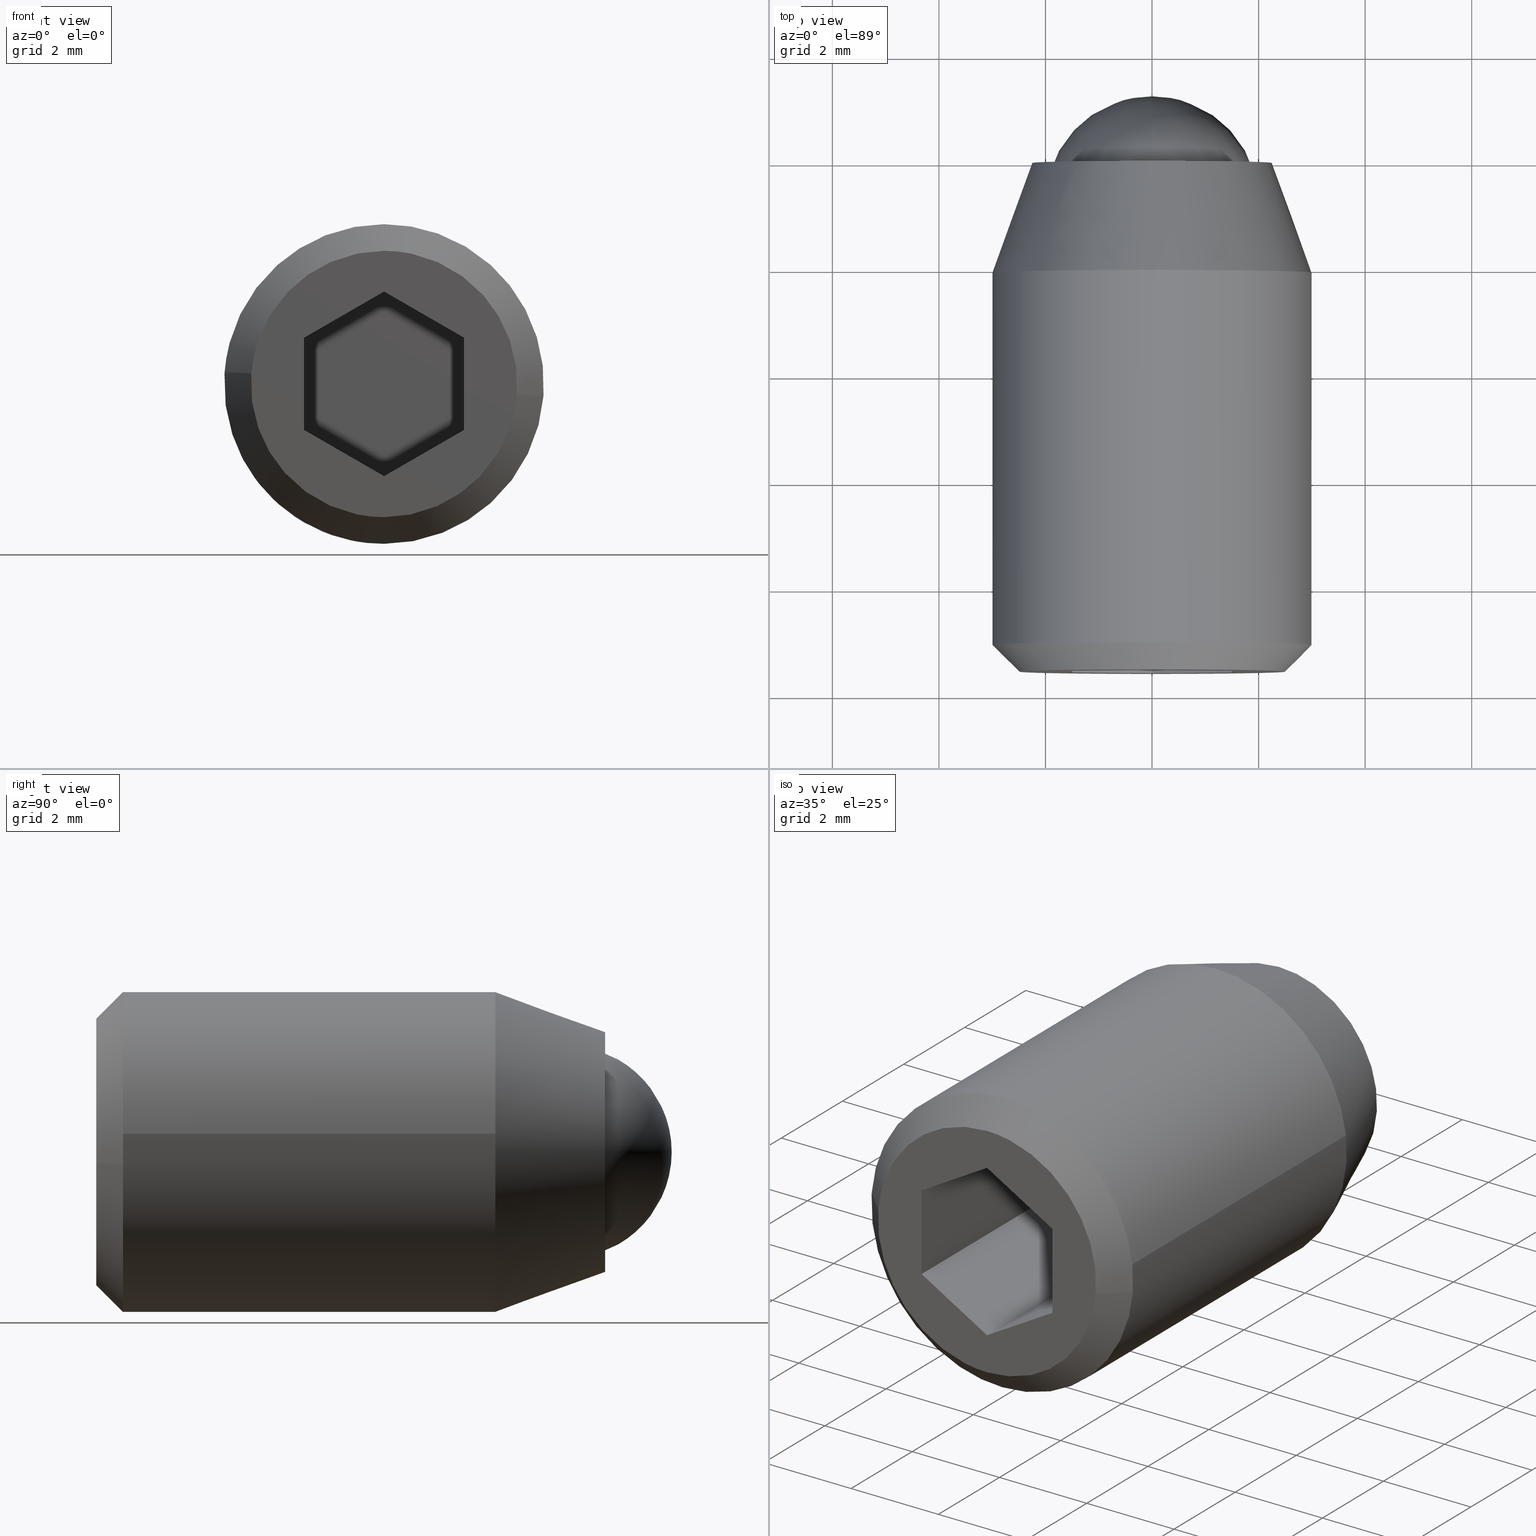
[diagram: canonical four-view strip — front | top / right | iso, engineering-drawing reading convention]
A machine part, canonical four-view strip (front | top / right | iso — engineering-drawing reading convention). The complete STEP part file that produces these views, byte-faithful:
ISO-10303-21;
HEADER;
/****************************************************************
 * Generated by software with PDE/Lib inside                    *
 * PDElib Version 4.4.1-0003, patched  Thursday August 19 11:58 *
 * International Technegroup Inc. (www.iti-oh.com)              *
 ****************************************************************/
FILE_DESCRIPTION((''),'2;1');
FILE_NAME('','2005-07-15T11:50:06',(''),(''),'','CADfix','');
FILE_SCHEMA(('AUTOMOTIVE_DESIGN'));
ENDSEC;
DATA;
#5=APPLICATION_CONTEXT('automotive design');
#6=APPLICATION_PROTOCOL_DEFINITION('Draft International Standard','automotive_design',1998,#5);
#7=PRODUCT_CONTEXT('None',#5,'mechanical');
#8=PRODUCT('body','','None',(#7));
#9=PRODUCT_RELATED_PRODUCT_CATEGORY('part','description',(#8));
#10=PRODUCT_DEFINITION_FORMATION('None','None',#8);
#11=PRODUCT_DEFINITION_CONTEXT('part definition',#5,'design');
#12=PRODUCT_DEFINITION('None','None',#10,#11);
#18=(NAMED_UNIT(*)PLANE_ANGLE_UNIT()SI_UNIT($,.RADIAN.));
#19=DIMENSIONAL_EXPONENTS(0.0,0.0,0.0,0.0,0.0,0.0,0.0);
#20=PLANE_ANGLE_MEASURE_WITH_UNIT(PLANE_ANGLE_MEASURE(0.017453292500000),#18);
#24=(CONVERSION_BASED_UNIT('DEGREE',#20)NAMED_UNIT(#19)PLANE_ANGLE_UNIT());
#28=(NAMED_UNIT(*)SI_UNIT($,.STERADIAN.)SOLID_ANGLE_UNIT());
#32=(LENGTH_UNIT()NAMED_UNIT(*)SI_UNIT(.MILLI.,.METRE.));
#34=UNCERTAINTY_MEASURE_WITH_UNIT(LENGTH_MEASURE(0.001000000000000),#32,'DISTANCE_ACCURACY_VALUE','');
#36=(GEOMETRIC_REPRESENTATION_CONTEXT(3)GLOBAL_UNCERTAINTY_ASSIGNED_CONTEXT((#34))GLOBAL_UNIT_ASSIGNED_CONTEXT((#24,#28,#32))REPRESENTATION_CONTEXT('None','None'));
#37=AXIS2_PLACEMENT_3D('',#38,#39,#40);
#38=CARTESIAN_POINT('',(0.0,0.0,0.0));
#39=DIRECTION('',(0.0,0.0,1.0));
#40=DIRECTION('',(1.0,0.0,0.0));
#41=ADVANCED_BREP_SHAPE_REPRESENTATION('',(#37,#949,#1160),#36);
#42=PRODUCT_DEFINITION_SHAPE('','',#12);
#43=SHAPE_DEFINITION_REPRESENTATION(#42,#41);
#44=CARTESIAN_POINT('',(-1.982515757766574,0.100000000000000,0.265541319116897));
#45=CARTESIAN_POINT('',(-1.984272344272688,0.100000000000000,0.250763342714323));
#46=CARTESIAN_POINT('',(-1.992775230897211,0.100000000000000,0.179229457275955));
#47=CARTESIAN_POINT('',(-1.996269596843733,0.100000000000000,0.122097079069714));
#48=CARTESIAN_POINT('',(-2.118366675913447,0.100000000000000,-1.874172517774020));
#49=CARTESIAN_POINT('',(-0.122097079069714,0.100000000000000,-1.996269596843733));
#50=CARTESIAN_POINT('',(1.874172517774020,0.100000000000000,-2.118366675913447));
#51=CARTESIAN_POINT('',(1.997147689022844,0.100000000000000,-0.107740398846569));
#52=CARTESIAN_POINT('',(1.998020565203575,0.100000000000000,-0.093468999443071));
#53=CARTESIAN_POINT('',(-1.982515757766574,-4.102500000000001,0.265541319116897));
#54=CARTESIAN_POINT('',(-1.984272344272688,-4.102500000000002,0.250763342714323));
#55=CARTESIAN_POINT('',(-1.992775230897211,-4.102500000000000,0.179229457275955));
#56=CARTESIAN_POINT('',(-1.996269596843733,-4.102500000000000,0.122097079069714));
#57=CARTESIAN_POINT('',(-2.118366675913447,-4.102499999999999,-1.874172517774020));
#58=CARTESIAN_POINT('',(-0.122097079069714,-4.102500000000000,-1.996269596843733));
#59=CARTESIAN_POINT('',(1.874172517774020,-4.102499999999999,-2.118366675913447));
#60=CARTESIAN_POINT('',(1.997147689022844,-4.102500000000001,-0.107740398846569));
#61=CARTESIAN_POINT('',(1.998020565203575,-4.102499999999999,-0.093468999443071));
#69=(BOUNDED_SURFACE()B_SPLINE_SURFACE(2,1,((#44,#53),(#45,#54),(#46,#55),(#47,#56),(#48,#57),(#49,#58),(#50,#59),(#51,#60),(#52,#61)),.UNSPECIFIED.,.F.,.F.,.U.)B_SPLINE_SURFACE_WITH_KNOTS((3,1,2,2,1,3),(2,2),(0.0,0.033799342158189,0.166347682117580,3.480056181102339,6.793764680087097,6.827568034150598),(0.0,4.202500000000002),.UNSPECIFIED.)GEOMETRIC_REPRESENTATION_ITEM()RATIONAL_B_SPLINE_SURFACE(((0.972008859665996,0.972008859665996),(0.974757330230561,0.974757330230561),(0.988284271247462,0.988284271247462),(1.0,1.0),(0.707106781186548,0.707106781186548),(1.0,1.0),(0.707106781186548,0.707106781186548),(1.002987822610644,1.002987822610644),(1.005975645221288,1.005975645221288)))REPRESENTATION_ITEM('')SURFACE());
#70=CARTESIAN_POINT('',(-1.986019104783265,-3.999999999999999,0.236068031371640));
#71=VERTEX_POINT('',#70);
#72=CARTESIAN_POINT('',(0.0,-4.0,-2.0));
#73=VERTEX_POINT('',#72);
#74=CARTESIAN_POINT('',(-1.986019104783265,-3.999999999999999,0.236068031371640));
#75=CARTESIAN_POINT('',(-2.0,-4.0,0.118447796732095));
#76=CARTESIAN_POINT('',(-2.0,-4.0,0.0));
#77=CARTESIAN_POINT('',(-2.000000000000000,-4.000000000000000,-2.000000000000000));
#78=CARTESIAN_POINT('',(0.0,-4.0,-2.0));
#86=(BOUNDED_CURVE()B_SPLINE_CURVE(2,(#74,#75,#76,#77,#78),.UNSPECIFIED.,.F.,.U.)B_SPLINE_CURVE_WITH_KNOTS((3,2,3),(0.229562548050281,0.250000000000000,0.500000000000000),.UNSPECIFIED.)CURVE()GEOMETRIC_REPRESENTATION_ITEM()RATIONAL_B_SPLINE_CURVE((0.956026900278876,0.976056035656406,1.0,0.707106781186548,1.0))REPRESENTATION_ITEM(''));
#87=EDGE_CURVE('',#71,#73,#86,.T.);
#88=ORIENTED_EDGE('',*,*,#87,.T.);
#89=CARTESIAN_POINT('',(1.996269779898336,-3.999999999999991,-0.122094086079775));
#90=VERTEX_POINT('',#89);
#91=CARTESIAN_POINT('',(0.0,-4.0,-2.0));
#92=CARTESIAN_POINT('',(1.881414959869414,-4.0,-2.0));
#93=CARTESIAN_POINT('',(1.996269779898336,-3.999999999999992,-0.122094086079775));
#101=(BOUNDED_CURVE()B_SPLINE_CURVE(2,(#91,#92,#93),.UNSPECIFIED.,.F.,.U.)B_SPLINE_CURVE_WITH_KNOTS((3,3),(0.500000000000000,0.739333220939945),.UNSPECIFIED.)CURVE()GEOMETRIC_REPRESENTATION_ITEM()RATIONAL_B_SPLINE_CURVE((1.0,0.719603690199634,0.976072596112838))REPRESENTATION_ITEM(''));
#102=EDGE_CURVE('',#73,#90,#101,.T.);
#103=ORIENTED_EDGE('',*,*,#102,.T.);
#104=CARTESIAN_POINT('',(1.996269777641058,-9.020562E-017,-0.122094122987751));
#105=VERTEX_POINT('',#104);
#106=CARTESIAN_POINT('',(1.996269777641058,-9.020562E-017,-0.122094122987751));
#107=CARTESIAN_POINT('',(1.996269779898336,-3.999999999999991,-0.122094086079775));
#108=QUASI_UNIFORM_CURVE('',1,(#106,#107),.UNSPECIFIED.,.F.,.U.);
#109=EDGE_CURVE('',#105,#90,#108,.T.);
#110=ORIENTED_EDGE('',*,*,#109,.F.);
#111=CARTESIAN_POINT('',(0.0,0.0,-2.0));
#112=VERTEX_POINT('',#111);
#113=CARTESIAN_POINT('',(0.0,0.0,-2.0));
#114=CARTESIAN_POINT('',(1.881414925019934,0.0,-2.000000000000000));
#115=CARTESIAN_POINT('',(1.996269777641058,-9.020562E-017,-0.122094122987751));
#123=(BOUNDED_CURVE()B_SPLINE_CURVE(2,(#113,#114,#115),.UNSPECIFIED.,.F.,.U.)B_SPLINE_CURVE_WITH_KNOTS((3,3),(0.500000000000000,0.739333217749817),.UNSPECIFIED.)CURVE()GEOMETRIC_REPRESENTATION_ITEM()RATIONAL_B_SPLINE_CURVE((1.0,0.719603693937101,0.976072589275771))REPRESENTATION_ITEM(''));
#124=EDGE_CURVE('',#112,#105,#123,.T.);
#125=ORIENTED_EDGE('',*,*,#124,.F.);
#126=CARTESIAN_POINT('',(-1.986019104141868,-8.518285E-017,0.236068036767671));
#127=VERTEX_POINT('',#126);
#128=CARTESIAN_POINT('',(-1.986019104141868,-8.518285E-017,0.236068036767671));
#129=CARTESIAN_POINT('',(-2.0,0.0,0.118447802185172));
#130=CARTESIAN_POINT('',(-2.0,0.0,0.0));
#131=CARTESIAN_POINT('',(-2.000000000000000,0.0,-2.000000000000000));
#132=CARTESIAN_POINT('',(0.0,0.0,-2.0));
#140=(BOUNDED_CURVE()B_SPLINE_CURVE(2,(#128,#129,#130,#131,#132),.UNSPECIFIED.,.F.,.U.)B_SPLINE_CURVE_WITH_KNOTS((3,2,3),(0.229562547131914,0.250000000000000,0.500000000000000),.UNSPECIFIED.)CURVE()GEOMETRIC_REPRESENTATION_ITEM()RATIONAL_B_SPLINE_CURVE((0.956026898478838,0.976056034580473,1.0,0.707106781186548,1.0))REPRESENTATION_ITEM(''));
#141=EDGE_CURVE('',#127,#112,#140,.T.);
#142=ORIENTED_EDGE('',*,*,#141,.F.);
#143=CARTESIAN_POINT('',(-1.986019104141868,-8.518285E-017,0.236068036767671));
#144=CARTESIAN_POINT('',(-1.986019104783265,-3.999999999999999,0.236068031371640));
#145=QUASI_UNIFORM_CURVE('',1,(#143,#144),.UNSPECIFIED.,.F.,.U.);
#146=EDGE_CURVE('',#127,#71,#145,.T.);
#147=ORIENTED_EDGE('',*,*,#146,.T.);
#148=EDGE_LOOP('',(#88,#103,#110,#125,#142,#147));
#149=FACE_OUTER_BOUND('',#148,.T.);
#150=ADVANCED_FACE('',(#149),#69,.F.);
#151=CARTESIAN_POINT('',(1.996269596843733,0.100000000000000,-0.122097079069714));
#152=CARTESIAN_POINT('',(2.118366675913447,0.100000000000000,1.874172517774020));
#153=CARTESIAN_POINT('',(0.122097079069714,0.100000000000000,1.996269596843733));
#154=CARTESIAN_POINT('',(-1.763086981679002,0.100000000000000,2.111572393465055));
#155=CARTESIAN_POINT('',(-1.986019052727332,0.100000000000000,0.236068469313517));
#156=CARTESIAN_POINT('',(1.996269596843733,-4.102500000000000,-0.122097079069714));
#157=CARTESIAN_POINT('',(2.118366675913447,-4.102499999999999,1.874172517774020));
#158=CARTESIAN_POINT('',(0.122097079069714,-4.102500000000000,1.996269596843733));
#159=CARTESIAN_POINT('',(-1.763086981679002,-4.102500000000000,2.111572393465055));
#160=CARTESIAN_POINT('',(-1.986019052727332,-4.102500000000001,0.236068469313517));
#168=(BOUNDED_SURFACE()B_SPLINE_SURFACE(2,1,((#151,#156),(#152,#157),(#153,#158),(#154,#159),(#155,#160)),.UNSPECIFIED.,.F.,.F.,.U.)B_SPLINE_SURFACE_WITH_KNOTS((3,2,3),(2,2),(0.0,3.313708498984759,6.494868658010128),(0.0,4.202500000000001),.UNSPECIFIED.)GEOMETRIC_REPRESENTATION_ITEM()RATIONAL_B_SPLINE_SURFACE(((1.0,1.0),(0.707106781186548,0.707106781186548),(1.0,1.0),(0.718822509939086,0.718822509939086),(0.977505800795127,0.977505800795127)))REPRESENTATION_ITEM('')SURFACE());
#169=CARTESIAN_POINT('',(0.0,-4.0,2.0));
#170=VERTEX_POINT('',#169);
#171=CARTESIAN_POINT('',(0.0,-4.0,2.0));
#172=CARTESIAN_POINT('',(-1.776349840831931,-4.0,2.0));
#173=CARTESIAN_POINT('',(-1.986019104783266,-4.000000000000000,0.236068031371640));
#181=(BOUNDED_CURVE()B_SPLINE_CURVE(2,(#171,#172,#173),.UNSPECIFIED.,.F.,.U.)B_SPLINE_CURVE_WITH_KNOTS((3,3),(0.0,0.229562548050281),.UNSPECIFIED.)CURVE()GEOMETRIC_REPRESENTATION_ITEM()RATIONAL_B_SPLINE_CURVE((1.0,0.731050745530141,0.956026900278876))REPRESENTATION_ITEM(''));
#182=EDGE_CURVE('',#170,#71,#181,.T.);
#183=ORIENTED_EDGE('',*,*,#182,.T.);
#184=ORIENTED_EDGE('',*,*,#146,.F.);
#185=CARTESIAN_POINT('',(0.0,0.0,2.0));
#186=VERTEX_POINT('',#185);
#187=CARTESIAN_POINT('',(0.0,0.0,2.0));
#188=CARTESIAN_POINT('',(-1.776349831111262,0.0,2.000000000000000));
#189=CARTESIAN_POINT('',(-1.986019104141868,-8.518285E-017,0.236068036767672));
#197=(BOUNDED_CURVE()B_SPLINE_CURVE(2,(#187,#188,#189),.UNSPECIFIED.,.F.,.U.)B_SPLINE_CURVE_WITH_KNOTS((3,3),(0.0,0.229562547131914),.UNSPECIFIED.)CURVE()GEOMETRIC_REPRESENTATION_ITEM()RATIONAL_B_SPLINE_CURVE((1.0,0.731050746606075,0.956026898478838))REPRESENTATION_ITEM(''));
#198=EDGE_CURVE('',#186,#127,#197,.T.);
#199=ORIENTED_EDGE('',*,*,#198,.F.);
#200=CARTESIAN_POINT('',(1.996269777641058,-9.020562E-017,-0.122094122987751));
#201=CARTESIAN_POINT('',(2.000000000000000,0.0,-0.061104044412081));
#202=CARTESIAN_POINT('',(2.0,0.0,0.0));
#203=CARTESIAN_POINT('',(2.000000000000000,0.0,2.000000000000000));
#204=CARTESIAN_POINT('',(0.0,0.0,2.0));
#212=(BOUNDED_CURVE()B_SPLINE_CURVE(2,(#200,#201,#202,#203,#204),.UNSPECIFIED.,.F.,.U.)B_SPLINE_CURVE_WITH_KNOTS((3,2,3),(0.739333217749817,0.750000000000000,1.0),.UNSPECIFIED.)CURVE()GEOMETRIC_REPRESENTATION_ITEM()RATIONAL_B_SPLINE_CURVE((0.976072589275771,0.987503087249447,1.0,0.707106781186548,1.0))REPRESENTATION_ITEM(''));
#213=EDGE_CURVE('',#105,#186,#212,.T.);
#214=ORIENTED_EDGE('',*,*,#213,.F.);
#215=ORIENTED_EDGE('',*,*,#109,.T.);
#216=CARTESIAN_POINT('',(1.996269779898336,-3.999999999999992,-0.122094086079775));
#217=CARTESIAN_POINT('',(2.0,-4.0,-0.061104025906355));
#218=CARTESIAN_POINT('',(2.0,-4.0,0.0));
#219=CARTESIAN_POINT('',(2.000000000000000,-4.000000000000000,2.000000000000000));
#220=CARTESIAN_POINT('',(0.0,-4.0,2.0));
#228=(BOUNDED_CURVE()B_SPLINE_CURVE(2,(#216,#217,#218,#219,#220),.UNSPECIFIED.,.F.,.U.)B_SPLINE_CURVE_WITH_KNOTS((3,2,3),(0.739333220939945,0.750000000000000,1.0),.UNSPECIFIED.)CURVE()GEOMETRIC_REPRESENTATION_ITEM()RATIONAL_B_SPLINE_CURVE((0.976072596112838,0.987503090986914,1.0,0.707106781186548,1.0))REPRESENTATION_ITEM(''));
#229=EDGE_CURVE('',#90,#170,#228,.T.);
#230=ORIENTED_EDGE('',*,*,#229,.T.);
#231=EDGE_LOOP('',(#183,#184,#199,#214,#215,#230));
#232=FACE_OUTER_BOUND('',#231,.T.);
#233=ADVANCED_FACE('',(#232),#168,.F.);
#234=CARTESIAN_POINT('',(-1.809484784690957,0.051515200000000,-1.305465961437498));
#235=CARTESIAN_POINT('',(-1.191122775734936,0.051515200000000,-2.162567318109237));
#236=CARTESIAN_POINT('',(-0.136214553837150,0.051515200000000,-2.227088268978794));
#237=CARTESIAN_POINT('',(2.090873715141643,0.051515200000000,-2.363302822815944));
#238=CARTESIAN_POINT('',(2.227088268978793,0.051515200000000,-0.136214553837151));
#239=CARTESIAN_POINT('',(2.363302822815943,0.051515200000000,2.090873715141642));
#240=CARTESIAN_POINT('',(0.136214553837150,0.051515200000000,2.227088268978792));
#241=CARTESIAN_POINT('',(-2.090873715141643,0.051515200000000,2.363302822815943));
#242=CARTESIAN_POINT('',(-2.227088268978793,0.051515200000000,0.136214553837149));
#243=CARTESIAN_POINT('',(-2.448506617267739,-2.113411079999999,-1.766492911264477));
#244=CARTESIAN_POINT('',(-1.611769285400990,-2.113411080000000,-2.926280692424700));
#245=CARTESIAN_POINT('',(-0.184318895223757,-2.113411080000000,-3.013587298422771));
#246=CARTESIAN_POINT('',(2.829268403199012,-2.113411080000000,-3.197906193646527));
#247=CARTESIAN_POINT('',(3.013587298422770,-2.113411080000000,-0.184318895223757));
#248=CARTESIAN_POINT('',(3.197906193646527,-2.113411080000000,2.829268403199012));
#249=CARTESIAN_POINT('',(0.184318895223757,-2.113411080000000,3.013587298422769));
#250=CARTESIAN_POINT('',(-2.829268403199012,-2.113411080000000,3.197906193646526));
#251=CARTESIAN_POINT('',(-3.013587298422770,-2.113411080000000,0.184318895223756));
#259=(BOUNDED_SURFACE()B_SPLINE_SURFACE(2,1,((#234,#243),(#235,#244),(#236,#245),(#237,#246),(#238,#247),(#239,#248),(#240,#249),(#241,#250),(#242,#251)),.UNSPECIFIED.,.F.,.F.,.U.)B_SPLINE_SURFACE_WITH_KNOTS((3,2,2,2,3),(2,2),(0.0,2.801347033007359,7.803752449091928,12.806157865176500,17.808563281261069),(0.0,2.303866434672635),.UNSPECIFIED.)GEOMETRIC_REPRESENTATION_ITEM()RATIONAL_B_SPLINE_SURFACE(((0.855662221768731,0.855662221768731),(0.835979797464467,0.835979797464467),(1.0,1.0),(0.707106781186548,0.707106781186548),(1.0,1.0),(0.707106781186548,0.707106781186548),(1.0,1.0),(0.707106781186548,0.707106781186548),(1.0,1.0)))REPRESENTATION_ITEM('')SURFACE());
#260=CARTESIAN_POINT('',(-1.824690539183465,-1.269605E-013,-1.316436263635491));
#261=VERTEX_POINT('',#260);
#262=CARTESIAN_POINT('',(0.0,0.0,-2.250000000000001));
#263=VERTEX_POINT('',#262);
#264=CARTESIAN_POINT('',(-1.824690539183464,-1.269605E-013,-1.316436263635491));
#265=CARTESIAN_POINT('',(-1.151164190152913,0.0,-2.250000000000000));
#266=CARTESIAN_POINT('',(0.0,0.0,-2.250000000000001));
#274=(BOUNDED_CURVE()B_SPLINE_CURVE(2,(#264,#265,#266),.UNSPECIFIED.,.F.,.U.)B_SPLINE_CURVE_WITH_KNOTS((3,3),(0.850743050382167,1.0),.UNSPECIFIED.)CURVE()GEOMETRIC_REPRESENTATION_ITEM()RATIONAL_B_SPLINE_CURVE((0.859068214727268,0.825134606384623,1.0))REPRESENTATION_ITEM(''));
#275=EDGE_CURVE('',#261,#263,#274,.T.);
#276=ORIENTED_EDGE('',*,*,#275,.T.);
#277=CARTESIAN_POINT('',(0.0,0.0,2.249999999999999));
#278=VERTEX_POINT('',#277);
#279=CARTESIAN_POINT('',(0.0,0.0,-2.250000000000001));
#280=CARTESIAN_POINT('',(2.250000000000000,0.0,-2.250000000000000));
#281=CARTESIAN_POINT('',(2.250000000000000,0.0,-6.765950E-016));
#282=CARTESIAN_POINT('',(2.250000000000000,0.0,2.249999999999999));
#283=CARTESIAN_POINT('',(0.0,0.0,2.249999999999999));
#291=(BOUNDED_CURVE()B_SPLINE_CURVE(2,(#279,#280,#281,#282,#283),.UNSPECIFIED.,.F.,.U.)B_SPLINE_CURVE_WITH_KNOTS((3,2,3),(0.0,0.250000000000000,0.500000000000000),.UNSPECIFIED.)CURVE()GEOMETRIC_REPRESENTATION_ITEM()RATIONAL_B_SPLINE_CURVE((1.0,0.707106781186547,1.0,0.707106781186547,1.0))REPRESENTATION_ITEM(''));
#292=EDGE_CURVE('',#263,#278,#291,.T.);
#293=ORIENTED_EDGE('',*,*,#292,.T.);
#294=CARTESIAN_POINT('',(-2.245803296449229,-8.940522E-013,0.137359213958318));
#295=VERTEX_POINT('',#294);
#296=CARTESIAN_POINT('',(0.0,0.0,2.249999999999999));
#297=CARTESIAN_POINT('',(-2.116588650528630,0.0,2.250000000000000));
#298=CARTESIAN_POINT('',(-2.245803296449229,-8.940522E-013,0.137359213958318));
#306=(BOUNDED_CURVE()B_SPLINE_CURVE(2,(#296,#297,#298),.UNSPECIFIED.,.F.,.U.)B_SPLINE_CURVE_WITH_KNOTS((3,3),(0.500000000000000,0.739332962241221),.UNSPECIFIED.)CURVE()GEOMETRIC_REPRESENTATION_ITEM()RATIONAL_B_SPLINE_CURVE((1.0,0.719603993284041,0.976072041671600))REPRESENTATION_ITEM(''));
#307=EDGE_CURVE('',#278,#295,#306,.T.);
#308=ORIENTED_EDGE('',*,*,#307,.T.);
#309=CARTESIAN_POINT('',(-2.994404426727895,-2.060607999420808,0.183145100744531));
#310=VERTEX_POINT('',#309);
#311=CARTESIAN_POINT('',(-2.245803296449229,-8.940522E-013,0.137359213958318));
#312=CARTESIAN_POINT('',(-2.994404426727895,-2.060607999420808,0.183145100744531));
#313=QUASI_UNIFORM_CURVE('',1,(#311,#312),.UNSPECIFIED.,.F.,.U.);
#314=EDGE_CURVE('',#295,#310,#313,.T.);
#315=ORIENTED_EDGE('',*,*,#314,.T.);
#316=CARTESIAN_POINT('',(0.0,-2.060608000000000,2.999999999999999));
#317=VERTEX_POINT('',#316);
#318=CARTESIAN_POINT('',(0.0,-2.060608000000000,2.999999999999999));
#319=CARTESIAN_POINT('',(-2.822118689681421,-2.060607999999999,2.999999999999999));
#320=CARTESIAN_POINT('',(-2.994404426727895,-2.060607999420808,0.183145100744531));
#328=(BOUNDED_CURVE()B_SPLINE_CURVE(2,(#318,#319,#320),.UNSPECIFIED.,.F.,.U.)B_SPLINE_CURVE_WITH_KNOTS((3,3),(0.500000000000000,0.739332992081915),.UNSPECIFIED.)CURVE()GEOMETRIC_REPRESENTATION_ITEM()RATIONAL_B_SPLINE_CURVE((1.0,0.719603958323494,0.976072105625896))REPRESENTATION_ITEM(''));
#329=EDGE_CURVE('',#317,#310,#328,.T.);
#330=ORIENTED_EDGE('',*,*,#329,.F.);
#331=CARTESIAN_POINT('',(2.980407836975965,-2.060608000000000,0.342299759402765));
#332=VERTEX_POINT('',#331);
#333=CARTESIAN_POINT('',(2.980407836975965,-2.060608000000001,0.342299759402765));
#334=CARTESIAN_POINT('',(2.675171036283069,-2.060607999999999,2.999999999999999));
#335=CARTESIAN_POINT('',(0.0,-2.060608000000000,2.999999999999999));
#343=(BOUNDED_CURVE()B_SPLINE_CURVE(2,(#333,#334,#335),.UNSPECIFIED.,.F.,.U.)B_SPLINE_CURVE_WITH_KNOTS((3,3),(0.269767628977231,0.500000000000000),.UNSPECIFIED.)CURVE()GEOMETRIC_REPRESENTATION_ITEM()RATIONAL_B_SPLINE_CURVE((0.957343986782005,0.730265999104353,1.0))REPRESENTATION_ITEM(''));
#344=EDGE_CURVE('',#332,#317,#343,.T.);
#345=ORIENTED_EDGE('',*,*,#344,.F.);
#346=CARTESIAN_POINT('',(0.0,-2.060608000000000,-3.000000000000001));
#347=VERTEX_POINT('',#346);
#348=CARTESIAN_POINT('',(0.0,-2.060608000000000,-3.000000000000001));
#349=CARTESIAN_POINT('',(3.0,-2.060607999999999,-3.0));
#350=CARTESIAN_POINT('',(3.0,-2.060608000000000,-6.765950E-016));
#351=CARTESIAN_POINT('',(2.999999999999999,-2.060607999999999,0.171710576636475));
#352=CARTESIAN_POINT('',(2.980407836975965,-2.060608000000001,0.342299759402765));
#360=(BOUNDED_CURVE()B_SPLINE_CURVE(2,(#348,#349,#350,#351,#352),.UNSPECIFIED.,.F.,.U.)B_SPLINE_CURVE_WITH_KNOTS((3,2,3),(0.0,0.250000000000000,0.269767628977231),.UNSPECIFIED.)CURVE()GEOMETRIC_REPRESENTATION_ITEM()RATIONAL_B_SPLINE_CURVE((1.0,0.707106781186548,1.0,0.976840782082195,0.957343986782005))REPRESENTATION_ITEM(''));
#361=EDGE_CURVE('',#347,#332,#360,.T.);
#362=ORIENTED_EDGE('',*,*,#361,.F.);
#363=CARTESIAN_POINT('',(-2.432920718911957,-2.060608000000046,-1.755248351512978));
#364=VERTEX_POINT('',#363);
#365=CARTESIAN_POINT('',(-2.432920718911957,-2.060608000000047,-1.755248351512978));
#366=CARTESIAN_POINT('',(-1.534885586872079,-2.060608000000000,-3.000000000000000));
#367=CARTESIAN_POINT('',(0.0,-2.060608000000000,-3.000000000000001));
#375=(BOUNDED_CURVE()B_SPLINE_CURVE(2,(#365,#366,#367),.UNSPECIFIED.,.F.,.U.)B_SPLINE_CURVE_WITH_KNOTS((3,3),(0.850743050382044,1.0),.UNSPECIFIED.)CURVE()GEOMETRIC_REPRESENTATION_ITEM()RATIONAL_B_SPLINE_CURVE((0.859068214727324,0.825134606384479,1.0))REPRESENTATION_ITEM(''));
#376=EDGE_CURVE('',#364,#347,#375,.T.);
#377=ORIENTED_EDGE('',*,*,#376,.F.);
#378=CARTESIAN_POINT('',(-1.824690539183465,-1.269605E-013,-1.316436263635491));
#379=CARTESIAN_POINT('',(-2.432920718911957,-2.060608000000046,-1.755248351512978));
#380=QUASI_UNIFORM_CURVE('',1,(#378,#379),.UNSPECIFIED.,.F.,.U.);
#381=EDGE_CURVE('',#261,#364,#380,.T.);
#382=ORIENTED_EDGE('',*,*,#381,.F.);
#383=EDGE_LOOP('',(#276,#293,#308,#315,#330,#345,#362,#377,#382));
#384=FACE_OUTER_BOUND('',#383,.T.);
#385=ADVANCED_FACE('',(#384),#259,.T.);
#386=CARTESIAN_POINT('',(-2.227088268978793,0.051515200000000,0.136214553837149));
#387=CARTESIAN_POINT('',(-2.275737919450327,0.051515200000000,-0.659200200335204));
#388=CARTESIAN_POINT('',(-1.809484784690957,0.051515200000000,-1.305465961437498));
#389=CARTESIAN_POINT('',(-3.013587298422770,-2.113411080000000,0.184318895223756));
#390=CARTESIAN_POINT('',(-3.079417634281416,-2.113411080000001,-0.891997582008202));
#391=CARTESIAN_POINT('',(-2.448506617267739,-2.113411079999999,-1.766492911264477));
#399=(BOUNDED_SURFACE()B_SPLINE_SURFACE(2,1,((#386,#389),(#387,#390),(#388,#391)),.UNSPECIFIED.,.F.,.F.,.U.)B_SPLINE_SURFACE_WITH_KNOTS((3,3),(2,2),(0.0,2.195633741882185),(0.0,2.303866434672634),.UNSPECIFIED.)GEOMETRIC_REPRESENTATION_ITEM()RATIONAL_B_SPLINE_SURFACE(((1.0,1.0),(0.871126983722081,0.871126983722081),(0.855662221768731,0.855662221768731)))REPRESENTATION_ITEM('')SURFACE());
#400=CARTESIAN_POINT('',(-2.245803296449229,-8.940522E-013,0.137359213958318));
#401=CARTESIAN_POINT('',(-2.250000000000001,0.0,0.068743717426708));
#402=CARTESIAN_POINT('',(-2.250000000000000,0.0,-6.765950E-016));
#403=CARTESIAN_POINT('',(-2.250000000000000,0.0,-0.726921852027605));
#404=CARTESIAN_POINT('',(-1.824690539183465,-1.269605E-013,-1.316436263635491));
#412=(BOUNDED_CURVE()B_SPLINE_CURVE(2,(#400,#401,#402,#403,#404),.UNSPECIFIED.,.F.,.U.)B_SPLINE_CURVE_WITH_KNOTS((3,2,3),(0.739332962241220,0.750000000000000,0.850743050382166),.UNSPECIFIED.)CURVE()GEOMETRIC_REPRESENTATION_ITEM()RATIONAL_B_SPLINE_CURVE((0.976072041671598,0.987502787902505,1.0,0.881972174801926,0.859068214727269))REPRESENTATION_ITEM(''));
#413=EDGE_CURVE('',#295,#261,#412,.T.);
#414=ORIENTED_EDGE('',*,*,#413,.T.);
#415=ORIENTED_EDGE('',*,*,#381,.T.);
#416=CARTESIAN_POINT('',(-2.994404426727895,-2.060607999420808,0.183145100744531));
#417=CARTESIAN_POINT('',(-3.000000000000000,-2.060608000000000,0.091658030246191));
#418=CARTESIAN_POINT('',(-3.0,-2.060608000000000,-6.765950E-016));
#419=CARTESIAN_POINT('',(-3.000000000000000,-2.060608000000000,-0.969229136035489));
#420=CARTESIAN_POINT('',(-2.432920718911956,-2.060608000000046,-1.755248351512978));
#428=(BOUNDED_CURVE()B_SPLINE_CURVE(2,(#416,#417,#418,#419,#420),.UNSPECIFIED.,.F.,.U.)B_SPLINE_CURVE_WITH_KNOTS((3,2,3),(0.739332992081915,0.750000000000000,0.850743050382045),.UNSPECIFIED.)CURVE()GEOMETRIC_REPRESENTATION_ITEM()RATIONAL_B_SPLINE_CURVE((0.976072105625896,0.987502822863054,1.0,0.881972174802068,0.859068214727324))REPRESENTATION_ITEM(''));
#429=EDGE_CURVE('',#310,#364,#428,.T.);
#430=ORIENTED_EDGE('',*,*,#429,.F.);
#431=ORIENTED_EDGE('',*,*,#314,.F.);
#432=EDGE_LOOP('',(#414,#415,#430,#431));
#433=FACE_OUTER_BOUND('',#432,.T.);
#434=ADVANCED_FACE('',(#433),#399,.T.);
#435=CARTESIAN_POINT('',(2.980407580307141,-1.885873199999999,0.342301994221081));
#436=CARTESIAN_POINT('',(2.693445457758243,-1.885873199999999,2.840867879739621));
#437=CARTESIAN_POINT('',(0.183145618604571,-1.885873199999999,2.994404395265599));
#438=CARTESIAN_POINT('',(-2.811258776661029,-1.885873200000000,3.177550013870171));
#439=CARTESIAN_POINT('',(-2.994404395265600,-1.885873199999999,0.183145618604570));
#440=CARTESIAN_POINT('',(2.980407580307141,-9.229103170000002,0.342301994221081));
#441=CARTESIAN_POINT('',(2.693445457758243,-9.229103170000000,2.840867879739621));
#442=CARTESIAN_POINT('',(0.183145618604571,-9.229103170000002,2.994404395265599));
#443=CARTESIAN_POINT('',(-2.811258776661029,-9.229103170000002,3.177550013870171));
#444=CARTESIAN_POINT('',(-2.994404395265600,-9.229103170000002,0.183145618604570));
#452=(BOUNDED_SURFACE()B_SPLINE_SURFACE(2,1,((#435,#440),(#436,#441),(#437,#442),(#438,#443),(#439,#444)),.UNSPECIFIED.,.F.,.F.,.U.)B_SPLINE_SURFACE_WITH_KNOTS((3,2,3),(2,2),(0.0,4.374095218659882,9.344657967137021),(0.0,7.343229970000003),.UNSPECIFIED.)GEOMETRIC_REPRESENTATION_ITEM()RATIONAL_B_SPLINE_SURFACE(((0.938140952186599,0.938140952186599),(0.742253967444162,0.742253967444162),(1.0,1.0),(0.707106781186548,0.707106781186548),(1.0,1.0)))REPRESENTATION_ITEM('')SURFACE());
#453=CARTESIAN_POINT('',(2.980407694089560,-9.050000000000003,0.342301003519939));
#454=VERTEX_POINT('',#453);
#455=CARTESIAN_POINT('',(0.0,-9.050000000000001,2.999999999999999));
#456=VERTEX_POINT('',#455);
#457=CARTESIAN_POINT('',(2.980407694089559,-9.050000000000003,0.342301003519939));
#458=CARTESIAN_POINT('',(2.675170807325332,-9.050000000000001,2.999999999999999));
#459=CARTESIAN_POINT('',(0.0,-9.050000000000001,2.999999999999999));
#467=(BOUNDED_CURVE()B_SPLINE_CURVE(2,(#457,#458,#459),.UNSPECIFIED.,.F.,.U.)B_SPLINE_CURVE_WITH_KNOTS((3,3),(0.269767643366915,0.500000000000000),.UNSPECIFIED.)CURVE()GEOMETRIC_REPRESENTATION_ITEM()RATIONAL_B_SPLINE_CURVE((0.957343958396942,0.730266015962916,1.0))REPRESENTATION_ITEM(''));
#468=EDGE_CURVE('',#454,#456,#467,.T.);
#469=ORIENTED_EDGE('',*,*,#468,.F.);
#470=CARTESIAN_POINT('',(2.980407836975965,-2.060608000000000,0.342299759402765));
#471=CARTESIAN_POINT('',(2.980407694089560,-9.050000000000003,0.342301003519939));
#472=QUASI_UNIFORM_CURVE('',1,(#470,#471),.UNSPECIFIED.,.F.,.U.);
#473=EDGE_CURVE('',#332,#454,#472,.T.);
#474=ORIENTED_EDGE('',*,*,#473,.F.);
#475=ORIENTED_EDGE('',*,*,#344,.T.);
#476=ORIENTED_EDGE('',*,*,#329,.T.);
#477=CARTESIAN_POINT('',(-2.994404411160120,-9.050000000000001,0.183145358731109));
#478=VERTEX_POINT('',#477);
#479=CARTESIAN_POINT('',(-2.994404426727895,-2.060607999420808,0.183145100744531));
#480=CARTESIAN_POINT('',(-2.994404411160120,-9.050000000000001,0.183145358731109));
#481=QUASI_UNIFORM_CURVE('',1,(#479,#480),.UNSPECIFIED.,.F.,.U.);
#482=EDGE_CURVE('',#310,#478,#481,.T.);
#483=ORIENTED_EDGE('',*,*,#482,.T.);
#484=CARTESIAN_POINT('',(-2.990752001200102,-9.049999999998192,0.235377287197443));
#485=VERTEX_POINT('',#484);
#486=CARTESIAN_POINT('',(-2.990752001200102,-9.049999999998192,0.235377287197443));
#487=CARTESIAN_POINT('',(-2.992806128093833,-9.050000000000003,0.209277130311658));
#488=CARTESIAN_POINT('',(-2.994404411160120,-9.050000000000001,0.183145358731109));
#496=(BOUNDED_CURVE()B_SPLINE_CURVE(2,(#486,#487,#488),.UNSPECIFIED.,.F.,.U.)B_SPLINE_CURVE_WITH_KNOTS((3,3),(0.736331300631189,0.739332992191385),.UNSPECIFIED.)CURVE()GEOMETRIC_REPRESENTATION_ITEM()RATIONAL_B_SPLINE_CURVE((0.969723356168522,0.972855506814733,0.976072105860511))REPRESENTATION_ITEM(''));
#497=EDGE_CURVE('',#485,#478,#496,.T.);
#498=ORIENTED_EDGE('',*,*,#497,.F.);
#499=CARTESIAN_POINT('',(0.0,-9.050000000000001,2.999999999999999));
#500=CARTESIAN_POINT('',(-2.773171474949025,-9.050000000000001,3.000000000000000));
#501=CARTESIAN_POINT('',(-2.990752001200101,-9.049999999998192,0.235377287197443));
#509=(BOUNDED_CURVE()B_SPLINE_CURVE(2,(#499,#500,#501),.UNSPECIFIED.,.F.,.U.)B_SPLINE_CURVE_WITH_KNOTS((3,3),(0.500000000000000,0.736331300631190),.UNSPECIFIED.)CURVE()GEOMETRIC_REPRESENTATION_ITEM()RATIONAL_B_SPLINE_CURVE((1.0,0.723120658607045,0.969723356168524))REPRESENTATION_ITEM(''));
#510=EDGE_CURVE('',#456,#485,#509,.T.);
#511=ORIENTED_EDGE('',*,*,#510,.F.);
#512=EDGE_LOOP('',(#469,#474,#475,#476,#483,#498,#511));
#513=FACE_OUTER_BOUND('',#512,.T.);
#514=ADVANCED_FACE('',(#513),#452,.T.);
#515=CARTESIAN_POINT('',(-2.994404395265600,-1.885873199999999,0.183145618604570));
#516=CARTESIAN_POINT('',(-3.177550013870171,-1.885873200000000,-2.811258776661029));
#517=CARTESIAN_POINT('',(-0.183145618604571,-1.885873199999999,-2.994404395265601));
#518=CARTESIAN_POINT('',(2.811258776661029,-1.885873200000000,-3.177550013870172));
#519=CARTESIAN_POINT('',(2.994404395265600,-1.885873199999999,-0.183145618604572));
#520=CARTESIAN_POINT('',(3.010510915184334,-1.885873199999999,0.080193654289639));
#521=CARTESIAN_POINT('',(2.980407580307141,-1.885873199999999,0.342301994221081));
#522=CARTESIAN_POINT('',(-2.994404395265600,-9.229103170000002,0.183145618604570));
#523=CARTESIAN_POINT('',(-3.177550013870171,-9.229103170000002,-2.811258776661029));
#524=CARTESIAN_POINT('',(-0.183145618604571,-9.229103170000002,-2.994404395265601));
#525=CARTESIAN_POINT('',(2.811258776661029,-9.229103170000002,-3.177550013870172));
#526=CARTESIAN_POINT('',(2.994404395265600,-9.229103170000002,-0.183145618604572));
#527=CARTESIAN_POINT('',(3.010510915184334,-9.229103170000002,0.080193654289639));
#528=CARTESIAN_POINT('',(2.980407580307141,-9.229103170000002,0.342301994221081));
#536=(BOUNDED_SURFACE()B_SPLINE_SURFACE(2,1,((#515,#522),(#516,#523),(#517,#524),(#518,#525),(#519,#526),(#520,#527),(#521,#528)),.UNSPECIFIED.,.F.,.F.,.U.)B_SPLINE_SURFACE_WITH_KNOTS((3,2,2,3),(2,2),(0.0,4.970562748477139,9.941125496954278,10.537593026771541),(0.0,7.343229970000003),.UNSPECIFIED.)GEOMETRIC_REPRESENTATION_ITEM()RATIONAL_B_SPLINE_SURFACE(((1.0,1.0),(0.707106781186548,0.707106781186548),(1.0,1.0),(0.707106781186548,0.707106781186548),(1.0,1.0),(0.964852813742386,0.964852813742386),(0.938140952186599,0.938140952186599)))REPRESENTATION_ITEM('')SURFACE());
#537=CARTESIAN_POINT('',(2.990752001200102,-9.049999999998192,-0.235377287197445));
#538=VERTEX_POINT('',#537);
#539=CARTESIAN_POINT('',(2.990752001200101,-9.049999999998192,-0.235377287197445));
#540=CARTESIAN_POINT('',(3.000000000000000,-9.050000000000001,-0.117870321036840));
#541=CARTESIAN_POINT('',(3.0,-9.050000000000001,-6.765950E-016));
#542=CARTESIAN_POINT('',(2.999999999999999,-9.049999999999999,0.171710704595212));
#543=CARTESIAN_POINT('',(2.980407694089560,-9.050000000000003,0.342301003519939));
#551=(BOUNDED_CURVE()B_SPLINE_CURVE(2,(#539,#540,#541,#542,#543),.UNSPECIFIED.,.F.,.U.)B_SPLINE_CURVE_WITH_KNOTS((3,2,3),(0.236331300631189,0.250000000000000,0.269767643366915),.UNSPECIFIED.)CURVE()GEOMETRIC_REPRESENTATION_ITEM()RATIONAL_B_SPLINE_CURVE((0.969723356168522,0.983986122579502,1.0,0.976840765223631,0.957343958396942))REPRESENTATION_ITEM(''));
#552=EDGE_CURVE('',#538,#454,#551,.T.);
#553=ORIENTED_EDGE('',*,*,#552,.F.);
#554=CARTESIAN_POINT('',(0.0,-9.050000000000001,-3.000000000000001));
#555=VERTEX_POINT('',#554);
#556=CARTESIAN_POINT('',(0.0,-9.050000000000001,-3.000000000000001));
#557=CARTESIAN_POINT('',(2.773171474949010,-9.049999999999999,-3.000000000000000));
#558=CARTESIAN_POINT('',(2.990752001200102,-9.049999999998192,-0.235377287197445));
#566=(BOUNDED_CURVE()B_SPLINE_CURVE(2,(#556,#557,#558),.UNSPECIFIED.,.F.,.U.)B_SPLINE_CURVE_WITH_KNOTS((3,3),(0.0,0.236331300631189),.UNSPECIFIED.)CURVE()GEOMETRIC_REPRESENTATION_ITEM()RATIONAL_B_SPLINE_CURVE((1.0,0.723120658607046,0.969723356168522))REPRESENTATION_ITEM(''));
#567=EDGE_CURVE('',#555,#538,#566,.T.);
#568=ORIENTED_EDGE('',*,*,#567,.F.);
#569=CARTESIAN_POINT('',(-2.994404411160119,-9.050000000000001,0.183145358731109));
#570=CARTESIAN_POINT('',(-3.0,-9.050000000000001,0.091658029293647));
#571=CARTESIAN_POINT('',(-3.0,-9.050000000000001,-6.765950E-016));
#572=CARTESIAN_POINT('',(-3.0,-9.050000000000001,-3.0));
#573=CARTESIAN_POINT('',(0.0,-9.050000000000001,-3.000000000000001));
#581=(BOUNDED_CURVE()B_SPLINE_CURVE(2,(#569,#570,#571,#572,#573),.UNSPECIFIED.,.F.,.U.)B_SPLINE_CURVE_WITH_KNOTS((3,2,3),(0.739332992191385,0.750000000000000,1.0),.UNSPECIFIED.)CURVE()GEOMETRIC_REPRESENTATION_ITEM()RATIONAL_B_SPLINE_CURVE((0.976072105860512,0.987502822991306,1.0,0.707106781186548,1.0))REPRESENTATION_ITEM(''));
#582=EDGE_CURVE('',#478,#555,#581,.T.);
#583=ORIENTED_EDGE('',*,*,#582,.F.);
#584=ORIENTED_EDGE('',*,*,#482,.F.);
#585=ORIENTED_EDGE('',*,*,#429,.T.);
#586=ORIENTED_EDGE('',*,*,#376,.T.);
#587=ORIENTED_EDGE('',*,*,#361,.T.);
#588=ORIENTED_EDGE('',*,*,#473,.T.);
#589=EDGE_LOOP('',(#553,#568,#583,#584,#585,#586,#587,#588));
#590=FACE_OUTER_BOUND('',#589,.T.);
#591=ADVANCED_FACE('',(#590),#536,.T.);
#592=CARTESIAN_POINT('',(2.479831867661154,-9.562500000000000,-0.195167000623016));
#593=CARTESIAN_POINT('',(2.284664867038139,-9.562500000000000,-2.674998868284170));
#594=CARTESIAN_POINT('',(-0.195167000623016,-9.562500000000000,-2.479831867661154));
#595=CARTESIAN_POINT('',(-2.674998868284169,-9.562500000000000,-2.284664867038139));
#596=CARTESIAN_POINT('',(-2.479831867661154,-9.562500000000000,0.195167000623015));
#597=CARTESIAN_POINT('',(3.003525004537839,-9.037187499999998,-0.236382544347550));
#598=CARTESIAN_POINT('',(2.767142460190290,-9.037187499999998,-3.239907548885388));
#599=CARTESIAN_POINT('',(-0.236382544347550,-9.037187499999998,-3.003525004537840));
#600=CARTESIAN_POINT('',(-3.239907548885388,-9.037187499999998,-2.767142460190290));
#601=CARTESIAN_POINT('',(-3.003525004537839,-9.037187499999998,0.236382544347549));
#609=(BOUNDED_SURFACE()B_SPLINE_SURFACE(2,1,((#592,#597),(#593,#598),(#594,#599),(#595,#600),(#596,#601)),.UNSPECIFIED.,.F.,.F.,.U.)B_SPLINE_SURFACE_WITH_KNOTS((3,2,3),(2,2),(0.0,4.991791193548761,9.983582387097522),(0.0,1.0),.UNSPECIFIED.)GEOMETRIC_REPRESENTATION_ITEM()RATIONAL_B_SPLINE_SURFACE(((1.0,1.0),(0.707106781186548,0.707106781186548),(1.0,1.0),(0.707106781186548,0.707106781186548),(1.0,1.0)))REPRESENTATION_ITEM('')SURFACE());
#610=CARTESIAN_POINT('',(0.0,-9.549999999999999,-2.500000000000001));
#611=VERTEX_POINT('',#610);
#612=CARTESIAN_POINT('',(2.492293334333674,-9.549999999997848,-0.196147739336167));
#613=VERTEX_POINT('',#612);
#614=CARTESIAN_POINT('',(0.0,-9.549999999999999,-2.500000000000001));
#615=CARTESIAN_POINT('',(2.310976229115038,-9.549999999999999,-2.500000000000000));
#616=CARTESIAN_POINT('',(2.492293334333674,-9.549999999997848,-0.196147739336167));
#624=(BOUNDED_CURVE()B_SPLINE_CURVE(2,(#614,#615,#616),.UNSPECIFIED.,.F.,.U.)B_SPLINE_CURVE_WITH_KNOTS((3,3),(0.0,0.236331300630513),.UNSPECIFIED.)CURVE()GEOMETRIC_REPRESENTATION_ITEM()RATIONAL_B_SPLINE_CURVE((1.0,0.723120658607837,0.969723356167112))REPRESENTATION_ITEM(''));
#625=EDGE_CURVE('',#611,#613,#624,.T.);
#626=ORIENTED_EDGE('',*,*,#625,.F.);
#627=CARTESIAN_POINT('',(-2.492293334333675,-9.549999999997848,0.196147739336166));
#628=VERTEX_POINT('',#627);
#629=CARTESIAN_POINT('',(-2.492293334333675,-9.549999999997848,0.196147739336166));
#630=CARTESIAN_POINT('',(-2.500000000000000,-9.550000000000001,0.098225267535634));
#631=CARTESIAN_POINT('',(-2.500000000000000,-9.549999999999999,-6.765950E-016));
#632=CARTESIAN_POINT('',(-2.500000000000000,-9.549999999999999,-2.500000000000001));
#633=CARTESIAN_POINT('',(0.0,-9.549999999999999,-2.500000000000001));
#641=(BOUNDED_CURVE()B_SPLINE_CURVE(2,(#629,#630,#631,#632,#633),.UNSPECIFIED.,.F.,.U.)B_SPLINE_CURVE_WITH_KNOTS((3,2,3),(0.736331300630513,0.750000000000000,1.0),.UNSPECIFIED.)CURVE()GEOMETRIC_REPRESENTATION_ITEM()RATIONAL_B_SPLINE_CURVE((0.969723356167112,0.983986122578710,1.0,0.707106781186548,1.0))REPRESENTATION_ITEM(''));
#642=EDGE_CURVE('',#628,#611,#641,.T.);
#643=ORIENTED_EDGE('',*,*,#642,.F.);
#644=CARTESIAN_POINT('',(-2.492293334333675,-9.549999999997848,0.196147739336166));
#645=CARTESIAN_POINT('',(-2.990752001200102,-9.049999999998192,0.235377287197443));
#646=QUASI_UNIFORM_CURVE('',1,(#644,#645),.UNSPECIFIED.,.F.,.U.);
#647=EDGE_CURVE('',#628,#485,#646,.T.);
#648=ORIENTED_EDGE('',*,*,#647,.T.);
#649=ORIENTED_EDGE('',*,*,#497,.T.);
#650=ORIENTED_EDGE('',*,*,#582,.T.);
#651=ORIENTED_EDGE('',*,*,#567,.T.);
#652=CARTESIAN_POINT('',(2.492293334333674,-9.549999999997848,-0.196147739336167));
#653=CARTESIAN_POINT('',(2.990752001200102,-9.049999999998192,-0.235377287197445));
#654=QUASI_UNIFORM_CURVE('',1,(#652,#653),.UNSPECIFIED.,.F.,.U.);
#655=EDGE_CURVE('',#613,#538,#654,.T.);
#656=ORIENTED_EDGE('',*,*,#655,.F.);
#657=EDGE_LOOP('',(#626,#643,#648,#649,#650,#651,#656));
#658=FACE_OUTER_BOUND('',#657,.T.);
#659=ADVANCED_FACE('',(#658),#609,.T.);
#660=CARTESIAN_POINT('',(-2.479831867661154,-9.562500000000000,0.195167000623015));
#661=CARTESIAN_POINT('',(-2.284664867038139,-9.562500000000000,2.674998868284169));
#662=CARTESIAN_POINT('',(0.195167000623016,-9.562500000000000,2.479831867661153));
#663=CARTESIAN_POINT('',(2.674998868284169,-9.562500000000000,2.284664867038138));
#664=CARTESIAN_POINT('',(2.479831867661154,-9.562500000000000,-0.195167000623016));
#665=CARTESIAN_POINT('',(-3.003525004537839,-9.037187499999998,0.236382544347549));
#666=CARTESIAN_POINT('',(-2.767142460190290,-9.037187499999998,3.239907548885388));
#667=CARTESIAN_POINT('',(0.236382544347550,-9.037187499999998,3.003525004537838));
#668=CARTESIAN_POINT('',(3.239907548885388,-9.037187499999998,2.767142460190288));
#669=CARTESIAN_POINT('',(3.003525004537839,-9.037187499999998,-0.236382544347550));
#677=(BOUNDED_SURFACE()B_SPLINE_SURFACE(2,1,((#660,#665),(#661,#666),(#662,#667),(#663,#668),(#664,#669)),.UNSPECIFIED.,.F.,.F.,.U.)B_SPLINE_SURFACE_WITH_KNOTS((3,2,3),(2,2),(0.0,4.991791193548761,9.983582387097522),(0.0,1.0),.UNSPECIFIED.)GEOMETRIC_REPRESENTATION_ITEM()RATIONAL_B_SPLINE_SURFACE(((1.0,1.0),(0.707106781186548,0.707106781186548),(1.0,1.0),(0.707106781186548,0.707106781186548),(1.0,1.0)))REPRESENTATION_ITEM('')SURFACE());
#678=CARTESIAN_POINT('',(0.0,-9.549999999999999,2.499999999999999));
#679=VERTEX_POINT('',#678);
#680=CARTESIAN_POINT('',(2.492293334333674,-9.549999999997848,-0.196147739336167));
#681=CARTESIAN_POINT('',(2.500000000000000,-9.550000000000001,-0.098225267535635));
#682=CARTESIAN_POINT('',(2.500000000000000,-9.549999999999999,-6.765950E-016));
#683=CARTESIAN_POINT('',(2.500000000000000,-9.549999999999999,2.499999999999999));
#684=CARTESIAN_POINT('',(0.0,-9.549999999999999,2.499999999999999));
#692=(BOUNDED_CURVE()B_SPLINE_CURVE(2,(#680,#681,#682,#683,#684),.UNSPECIFIED.,.F.,.U.)B_SPLINE_CURVE_WITH_KNOTS((3,2,3),(0.236331300630513,0.250000000000000,0.500000000000000),.UNSPECIFIED.)CURVE()GEOMETRIC_REPRESENTATION_ITEM()RATIONAL_B_SPLINE_CURVE((0.969723356167112,0.983986122578710,1.0,0.707106781186548,1.0))REPRESENTATION_ITEM(''));
#693=EDGE_CURVE('',#613,#679,#692,.T.);
#694=ORIENTED_EDGE('',*,*,#693,.F.);
#695=ORIENTED_EDGE('',*,*,#655,.T.);
#696=ORIENTED_EDGE('',*,*,#552,.T.);
#697=ORIENTED_EDGE('',*,*,#468,.T.);
#698=ORIENTED_EDGE('',*,*,#510,.T.);
#699=ORIENTED_EDGE('',*,*,#647,.F.);
#700=CARTESIAN_POINT('',(0.0,-9.549999999999999,2.499999999999999));
#701=CARTESIAN_POINT('',(-2.310976229115030,-9.550000000000001,2.500000000000000));
#702=CARTESIAN_POINT('',(-2.492293334333675,-9.549999999997848,0.196147739336166));
#710=(BOUNDED_CURVE()B_SPLINE_CURVE(2,(#700,#701,#702),.UNSPECIFIED.,.F.,.U.)B_SPLINE_CURVE_WITH_KNOTS((3,3),(0.500000000000000,0.736331300630512),.UNSPECIFIED.)CURVE()GEOMETRIC_REPRESENTATION_ITEM()RATIONAL_B_SPLINE_CURVE((1.0,0.723120658607838,0.969723356167110))REPRESENTATION_ITEM(''));
#711=EDGE_CURVE('',#679,#628,#710,.T.);
#712=ORIENTED_EDGE('',*,*,#711,.F.);
#713=EDGE_LOOP('',(#694,#695,#696,#697,#698,#699,#712));
#714=FACE_OUTER_BOUND('',#713,.T.);
#715=ADVANCED_FACE('',(#714),#677,.T.);
#716=CARTESIAN_POINT('',(-2.199763729071017,-4.0,2.199799992247224));
#717=CARTESIAN_POINT('',(2.199751319383975,-4.0,2.199799992247224));
#718=CARTESIAN_POINT('',(-2.199763729071017,-4.0,-2.199800099535584));
#719=CARTESIAN_POINT('',(2.199751319383975,-4.0,-2.199800099535584));
#720=B_SPLINE_SURFACE_WITH_KNOTS('',1,1,((#716,#718),(#717,#719)),.UNSPECIFIED.,.F.,.F.,.U.,(2,2),(2,2),(0.0,4.399515048454992),(0.0,4.399600091782808),.UNSPECIFIED.);
#721=ORIENTED_EDGE('',*,*,#229,.F.);
#722=ORIENTED_EDGE('',*,*,#102,.F.);
#723=ORIENTED_EDGE('',*,*,#87,.F.);
#724=ORIENTED_EDGE('',*,*,#182,.F.);
#725=EDGE_LOOP('',(#721,#722,#723,#724));
#726=FACE_OUTER_BOUND('',#725,.T.);
#727=ADVANCED_FACE('',(#726),#720,.T.);
#728=CARTESIAN_POINT('',(-1.649849994185418,-5.550000000000000,1.905082920704409));
#729=CARTESIAN_POINT('',(1.649850074651688,-5.550000000000000,1.905082920704409));
#730=CARTESIAN_POINT('',(-1.649849994185418,-5.550000000000000,-1.905082982647380));
#731=CARTESIAN_POINT('',(1.649850074651688,-5.550000000000000,-1.905082982647380));
#732=B_SPLINE_SURFACE_WITH_KNOTS('',1,1,((#728,#730),(#729,#731)),.UNSPECIFIED.,.F.,.F.,.U.,(2,2),(2,2),(0.0,3.299700068837106),(0.0,3.810165903351789),.UNSPECIFIED.);
#733=CARTESIAN_POINT('',(-1.500000000000000,-5.550000000000000,0.866025000000000));
#734=VERTEX_POINT('',#733);
#735=CARTESIAN_POINT('',(-1.500000000000000,-5.550000000000000,-0.866025000000000));
#736=VERTEX_POINT('',#735);
#737=CARTESIAN_POINT('',(-1.500000000000000,-5.550000000000000,0.866025000000000));
#738=CARTESIAN_POINT('',(-1.500000000000000,-5.550000000000000,-0.866025000000000));
#739=QUASI_UNIFORM_CURVE('',1,(#737,#738),.UNSPECIFIED.,.F.,.U.);
#740=EDGE_CURVE('',#734,#736,#739,.T.);
#741=ORIENTED_EDGE('',*,*,#740,.T.);
#742=CARTESIAN_POINT('',(0.0,-5.550000000000000,-1.732051000000000));
#743=VERTEX_POINT('',#742);
#744=CARTESIAN_POINT('',(-1.500000000000000,-5.550000000000000,-0.866025000000000));
#745=CARTESIAN_POINT('',(0.0,-5.550000000000000,-1.732051000000000));
#746=QUASI_UNIFORM_CURVE('',1,(#744,#745),.UNSPECIFIED.,.F.,.U.);
#747=EDGE_CURVE('',#736,#743,#746,.T.);
#748=ORIENTED_EDGE('',*,*,#747,.T.);
#749=CARTESIAN_POINT('',(1.500000000000000,-5.550000000000000,-0.866025000000000));
#750=VERTEX_POINT('',#749);
#751=CARTESIAN_POINT('',(0.0,-5.550000000000000,-1.732051000000000));
#752=CARTESIAN_POINT('',(1.500000000000000,-5.550000000000000,-0.866025000000000));
#753=QUASI_UNIFORM_CURVE('',1,(#751,#752),.UNSPECIFIED.,.F.,.U.);
#754=EDGE_CURVE('',#743,#750,#753,.T.);
#755=ORIENTED_EDGE('',*,*,#754,.T.);
#756=CARTESIAN_POINT('',(1.500000000000000,-5.550000000000000,0.866025000000000));
#757=VERTEX_POINT('',#756);
#758=CARTESIAN_POINT('',(1.500000000000000,-5.550000000000000,-0.866025000000000));
#759=CARTESIAN_POINT('',(1.500000000000000,-5.550000000000000,0.866025000000000));
#760=QUASI_UNIFORM_CURVE('',1,(#758,#759),.UNSPECIFIED.,.F.,.U.);
#761=EDGE_CURVE('',#750,#757,#760,.T.);
#762=ORIENTED_EDGE('',*,*,#761,.T.);
#763=CARTESIAN_POINT('',(0.0,-5.550000000000000,1.732051000000000));
#764=VERTEX_POINT('',#763);
#765=CARTESIAN_POINT('',(1.500000000000000,-5.550000000000000,0.866025000000000));
#766=CARTESIAN_POINT('',(0.0,-5.550000000000000,1.732051000000000));
#767=QUASI_UNIFORM_CURVE('',1,(#765,#766),.UNSPECIFIED.,.F.,.U.);
#768=EDGE_CURVE('',#757,#764,#767,.T.);
#769=ORIENTED_EDGE('',*,*,#768,.T.);
#770=CARTESIAN_POINT('',(0.0,-5.550000000000000,1.732051000000000));
#771=CARTESIAN_POINT('',(-1.500000000000000,-5.550000000000000,0.866025000000000));
#772=QUASI_UNIFORM_CURVE('',1,(#770,#771),.UNSPECIFIED.,.F.,.U.);
#773=EDGE_CURVE('',#764,#734,#772,.T.);
#774=ORIENTED_EDGE('',*,*,#773,.T.);
#775=EDGE_LOOP('',(#741,#748,#755,#762,#769,#774));
#776=FACE_OUTER_BOUND('',#775,.T.);
#777=ADVANCED_FACE('',(#776),#732,.F.);
#778=CARTESIAN_POINT('',(-1.574925011173636,-9.749800203251244,0.822766994848895));
#779=CARTESIAN_POINT('',(0.074925037995726,-9.749800203251244,1.775309020636858));
#780=CARTESIAN_POINT('',(-1.574925011173636,-5.350200190139412,0.822766994848895));
#781=CARTESIAN_POINT('',(0.074925037995726,-5.350200190139412,1.775309020636858));
#782=B_SPLINE_SURFACE_WITH_KNOTS('',1,1,((#778,#780),(#779,#781)),.UNSPECIFIED.,.F.,.F.,.U.,(2,2),(2,2),(0.0,1.905083067909739),(0.0,4.399600013111832),.UNSPECIFIED.);
#783=CARTESIAN_POINT('',(1.084202E-016,-9.549999999999999,1.732051000000000));
#784=VERTEX_POINT('',#783);
#785=CARTESIAN_POINT('',(-1.500000000000000,-9.549999999999999,0.866025000000000));
#786=VERTEX_POINT('',#785);
#787=CARTESIAN_POINT('',(1.084202E-016,-9.549999999999999,1.732051000000000));
#788=CARTESIAN_POINT('',(-1.500000000000000,-9.549999999999999,0.866025000000000));
#789=QUASI_UNIFORM_CURVE('',1,(#787,#788),.UNSPECIFIED.,.F.,.U.);
#790=EDGE_CURVE('',#784,#786,#789,.T.);
#791=ORIENTED_EDGE('',*,*,#790,.T.);
#792=CARTESIAN_POINT('',(-1.500000000000000,-5.550000000000000,0.866025000000000));
#793=CARTESIAN_POINT('',(-1.500000000000000,-9.549999999999999,0.866025000000000));
#794=QUASI_UNIFORM_CURVE('',1,(#792,#793),.UNSPECIFIED.,.F.,.U.);
#795=EDGE_CURVE('',#734,#786,#794,.T.);
#796=ORIENTED_EDGE('',*,*,#795,.F.);
#797=ORIENTED_EDGE('',*,*,#773,.F.);
#798=CARTESIAN_POINT('',(0.0,-5.550000000000000,1.732051000000000));
#799=CARTESIAN_POINT('',(1.084202E-016,-9.549999999999999,1.732051000000000));
#800=QUASI_UNIFORM_CURVE('',1,(#798,#799),.UNSPECIFIED.,.F.,.U.);
#801=EDGE_CURVE('',#764,#784,#800,.T.);
#802=ORIENTED_EDGE('',*,*,#801,.T.);
#803=EDGE_LOOP('',(#791,#796,#797,#802));
#804=FACE_OUTER_BOUND('',#803,.T.);
#805=ADVANCED_FACE('',(#804),#782,.F.);
#806=CARTESIAN_POINT('',(-0.074925011173636,-9.749800203251244,1.775309005151105));
#807=CARTESIAN_POINT('',(1.574925037995726,-9.749800203251244,0.822766979363142));
#808=CARTESIAN_POINT('',(-0.074925011173636,-5.350200190139412,1.775309005151105));
#809=CARTESIAN_POINT('',(1.574925037995726,-5.350200190139412,0.822766979363142));
#810=B_SPLINE_SURFACE_WITH_KNOTS('',1,1,((#806,#808),(#807,#809)),.UNSPECIFIED.,.F.,.F.,.U.,(2,2),(2,2),(0.0,1.905083067909739),(0.0,4.399600013111832),.UNSPECIFIED.);
#811=CARTESIAN_POINT('',(1.500000000000000,-9.549999999999999,0.866025000000000));
#812=VERTEX_POINT('',#811);
#813=CARTESIAN_POINT('',(1.500000000000000,-9.549999999999999,0.866025000000000));
#814=CARTESIAN_POINT('',(1.084202E-016,-9.549999999999999,1.732051000000000));
#815=QUASI_UNIFORM_CURVE('',1,(#813,#814),.UNSPECIFIED.,.F.,.U.);
#816=EDGE_CURVE('',#812,#784,#815,.T.);
#817=ORIENTED_EDGE('',*,*,#816,.T.);
#818=ORIENTED_EDGE('',*,*,#801,.F.);
#819=ORIENTED_EDGE('',*,*,#768,.F.);
#820=CARTESIAN_POINT('',(1.500000000000000,-5.550000000000000,0.866025000000000));
#821=CARTESIAN_POINT('',(1.500000000000000,-9.549999999999999,0.866025000000000));
#822=QUASI_UNIFORM_CURVE('',1,(#820,#821),.UNSPECIFIED.,.F.,.U.);
#823=EDGE_CURVE('',#757,#812,#822,.T.);
#824=ORIENTED_EDGE('',*,*,#823,.T.);
#825=EDGE_LOOP('',(#817,#818,#819,#824));
#826=FACE_OUTER_BOUND('',#825,.T.);
#827=ADVANCED_FACE('',(#826),#810,.F.);
#828=CARTESIAN_POINT('',(1.500000000000000,-9.749800203251244,0.952540855436359));
#829=CARTESIAN_POINT('',(1.500000000000000,-9.749800203251244,-0.952540808979158));
#830=CARTESIAN_POINT('',(1.500000000000000,-5.350200190139412,0.952540855436359));
#831=CARTESIAN_POINT('',(1.500000000000000,-5.350200190139412,-0.952540808979158));
#832=B_SPLINE_SURFACE_WITH_KNOTS('',1,1,((#828,#830),(#829,#831)),.UNSPECIFIED.,.F.,.F.,.U.,(2,2),(2,2),(0.0,1.905081664415518),(0.0,4.399600013111832),.UNSPECIFIED.);
#833=CARTESIAN_POINT('',(1.500000000000000,-9.549999999999999,-0.866025000000000));
#834=VERTEX_POINT('',#833);
#835=CARTESIAN_POINT('',(1.500000000000000,-9.549999999999999,-0.866025000000000));
#836=CARTESIAN_POINT('',(1.500000000000000,-9.549999999999999,0.866025000000000));
#837=QUASI_UNIFORM_CURVE('',1,(#835,#836),.UNSPECIFIED.,.F.,.U.);
#838=EDGE_CURVE('',#834,#812,#837,.T.);
#839=ORIENTED_EDGE('',*,*,#838,.T.);
#840=ORIENTED_EDGE('',*,*,#823,.F.);
#841=ORIENTED_EDGE('',*,*,#761,.F.);
#842=CARTESIAN_POINT('',(1.500000000000000,-5.550000000000000,-0.866025000000000));
#843=CARTESIAN_POINT('',(1.500000000000000,-9.549999999999999,-0.866025000000000));
#844=QUASI_UNIFORM_CURVE('',1,(#842,#843),.UNSPECIFIED.,.F.,.U.);
#845=EDGE_CURVE('',#750,#834,#844,.T.);
#846=ORIENTED_EDGE('',*,*,#845,.T.);
#847=EDGE_LOOP('',(#839,#840,#841,#846));
#848=FACE_OUTER_BOUND('',#847,.T.);
#849=ADVANCED_FACE('',(#848),#832,.F.);
#850=CARTESIAN_POINT('',(1.574925011173640,-9.749800203251244,-0.822766994848900));
#851=CARTESIAN_POINT('',(-0.074925037995726,-9.749800203251244,-1.775309020636858));
#852=CARTESIAN_POINT('',(1.574925011173640,-5.350200190139412,-0.822766994848900));
#853=CARTESIAN_POINT('',(-0.074925037995726,-5.350200190139412,-1.775309020636858));
#854=B_SPLINE_SURFACE_WITH_KNOTS('',1,1,((#850,#852),(#851,#853)),.UNSPECIFIED.,.F.,.F.,.U.,(2,2),(2,2),(0.0,1.905083067909740),(0.0,4.399600013111832),.UNSPECIFIED.);
#855=CARTESIAN_POINT('',(0.0,-9.549999999999999,-1.732051000000000));
#856=VERTEX_POINT('',#855);
#857=CARTESIAN_POINT('',(0.0,-9.549999999999999,-1.732051000000000));
#858=CARTESIAN_POINT('',(1.500000000000000,-9.549999999999999,-0.866025000000000));
#859=QUASI_UNIFORM_CURVE('',1,(#857,#858),.UNSPECIFIED.,.F.,.U.);
#860=EDGE_CURVE('',#856,#834,#859,.T.);
#861=ORIENTED_EDGE('',*,*,#860,.T.);
#862=ORIENTED_EDGE('',*,*,#845,.F.);
#863=ORIENTED_EDGE('',*,*,#754,.F.);
#864=CARTESIAN_POINT('',(0.0,-5.550000000000000,-1.732051000000000));
#865=CARTESIAN_POINT('',(0.0,-9.549999999999999,-1.732051000000000));
#866=QUASI_UNIFORM_CURVE('',1,(#864,#865),.UNSPECIFIED.,.F.,.U.);
#867=EDGE_CURVE('',#743,#856,#866,.T.);
#868=ORIENTED_EDGE('',*,*,#867,.T.);
#869=EDGE_LOOP('',(#861,#862,#863,#868));
#870=FACE_OUTER_BOUND('',#869,.T.);
#871=ADVANCED_FACE('',(#870),#854,.F.);
#872=CARTESIAN_POINT('',(0.074925011173640,-9.749800203251244,-1.775309005151100));
#873=CARTESIAN_POINT('',(-1.574925037995726,-9.749800203251244,-0.822766979363143));
#874=CARTESIAN_POINT('',(0.074925011173640,-5.350200190139412,-1.775309005151100));
#875=CARTESIAN_POINT('',(-1.574925037995726,-5.350200190139412,-0.822766979363143));
#876=B_SPLINE_SURFACE_WITH_KNOTS('',1,1,((#872,#874),(#873,#875)),.UNSPECIFIED.,.F.,.F.,.U.,(2,2),(2,2),(0.0,1.905083067909739),(0.0,4.399600013111832),.UNSPECIFIED.);
#877=CARTESIAN_POINT('',(-1.500000000000000,-9.549999999999999,-0.866025000000000));
#878=VERTEX_POINT('',#877);
#879=CARTESIAN_POINT('',(-1.500000000000000,-9.549999999999999,-0.866025000000000));
#880=CARTESIAN_POINT('',(0.0,-9.549999999999999,-1.732051000000000));
#881=QUASI_UNIFORM_CURVE('',1,(#879,#880),.UNSPECIFIED.,.F.,.U.);
#882=EDGE_CURVE('',#878,#856,#881,.T.);
#883=ORIENTED_EDGE('',*,*,#882,.T.);
#884=ORIENTED_EDGE('',*,*,#867,.F.);
#885=ORIENTED_EDGE('',*,*,#747,.F.);
#886=CARTESIAN_POINT('',(-1.500000000000000,-5.550000000000000,-0.866025000000000));
#887=CARTESIAN_POINT('',(-1.500000000000000,-9.549999999999999,-0.866025000000000));
#888=QUASI_UNIFORM_CURVE('',1,(#886,#887),.UNSPECIFIED.,.F.,.U.);
#889=EDGE_CURVE('',#736,#878,#888,.T.);
#890=ORIENTED_EDGE('',*,*,#889,.T.);
#891=EDGE_LOOP('',(#883,#884,#885,#890));
#892=FACE_OUTER_BOUND('',#891,.T.);
#893=ADVANCED_FACE('',(#892),#876,.F.);
#894=CARTESIAN_POINT('',(-1.500000000000000,-9.749800203251244,-0.952540855436359));
#895=CARTESIAN_POINT('',(-1.500000000000000,-9.749800203251244,0.952540808979158));
#896=CARTESIAN_POINT('',(-1.500000000000000,-5.350200190139412,-0.952540855436359));
#897=CARTESIAN_POINT('',(-1.500000000000000,-5.350200190139412,0.952540808979158));
#898=B_SPLINE_SURFACE_WITH_KNOTS('',1,1,((#894,#896),(#895,#897)),.UNSPECIFIED.,.F.,.F.,.U.,(2,2),(2,2),(0.0,1.905081664415518),(0.0,4.399600013111832),.UNSPECIFIED.);
#899=CARTESIAN_POINT('',(-1.500000000000000,-9.549999999999999,0.866025000000000));
#900=CARTESIAN_POINT('',(-1.500000000000000,-9.549999999999999,-0.866025000000000));
#901=QUASI_UNIFORM_CURVE('',1,(#899,#900),.UNSPECIFIED.,.F.,.U.);
#902=EDGE_CURVE('',#786,#878,#901,.T.);
#903=ORIENTED_EDGE('',*,*,#902,.T.);
#904=ORIENTED_EDGE('',*,*,#889,.F.);
#905=ORIENTED_EDGE('',*,*,#740,.F.);
#906=ORIENTED_EDGE('',*,*,#795,.T.);
#907=EDGE_LOOP('',(#903,#904,#905,#906));
#908=FACE_OUTER_BOUND('',#907,.T.);
#909=ADVANCED_FACE('',(#908),#898,.F.);
#910=CARTESIAN_POINT('',(-2.748986881817126,-9.549999999999999,2.749749990309029));
#911=CARTESIAN_POINT('',(-2.748986881817126,-9.549999999999999,-2.749750124419482));
#912=CARTESIAN_POINT('',(2.748987015927578,-9.549999999999999,2.749749990309029));
#913=CARTESIAN_POINT('',(2.748987015927578,-9.549999999999999,-2.749750124419482));
#914=B_SPLINE_SURFACE_WITH_KNOTS('',1,1,((#910,#912),(#911,#913)),.UNSPECIFIED.,.F.,.F.,.U.,(2,2),(2,2),(0.0,5.499500114728511),(0.0,5.497973897744704),.UNSPECIFIED.);
#915=ORIENTED_EDGE('',*,*,#625,.T.);
#916=ORIENTED_EDGE('',*,*,#693,.T.);
#917=ORIENTED_EDGE('',*,*,#711,.T.);
#918=ORIENTED_EDGE('',*,*,#642,.T.);
#919=EDGE_LOOP('',(#915,#916,#917,#918));
#920=FACE_OUTER_BOUND('',#919,.T.);
#921=ORIENTED_EDGE('',*,*,#902,.F.);
#922=ORIENTED_EDGE('',*,*,#790,.F.);
#923=ORIENTED_EDGE('',*,*,#816,.F.);
#924=ORIENTED_EDGE('',*,*,#838,.F.);
#925=ORIENTED_EDGE('',*,*,#860,.F.);
#926=ORIENTED_EDGE('',*,*,#882,.F.);
#927=EDGE_LOOP('',(#921,#922,#923,#924,#925,#926));
#928=FACE_BOUND('',#927,.T.);
#929=ADVANCED_FACE('',(#920,#928),#914,.T.);
#930=CARTESIAN_POINT('',(-2.474708163199642,0.0,-2.474774991278128));
#931=CARTESIAN_POINT('',(-2.474708163199642,0.0,2.474775111977531));
#932=CARTESIAN_POINT('',(2.474771932718971,0.0,-2.474774991278128));
#933=CARTESIAN_POINT('',(2.474771932718971,0.0,2.474775111977531));
#934=B_SPLINE_SURFACE_WITH_KNOTS('',1,1,((#930,#932),(#931,#933)),.UNSPECIFIED.,.F.,.F.,.U.,(2,2),(2,2),(0.0,4.949550103255659),(0.0,4.949480095918612),.UNSPECIFIED.);
#935=ORIENTED_EDGE('',*,*,#275,.F.);
#936=ORIENTED_EDGE('',*,*,#413,.F.);
#937=ORIENTED_EDGE('',*,*,#307,.F.);
#938=ORIENTED_EDGE('',*,*,#292,.F.);
#939=EDGE_LOOP('',(#935,#936,#937,#938));
#940=FACE_OUTER_BOUND('',#939,.T.);
#941=ORIENTED_EDGE('',*,*,#124,.T.);
#942=ORIENTED_EDGE('',*,*,#213,.T.);
#943=ORIENTED_EDGE('',*,*,#198,.T.);
#944=ORIENTED_EDGE('',*,*,#141,.T.);
#945=EDGE_LOOP('',(#941,#942,#943,#944));
#946=FACE_BOUND('',#945,.T.);
#947=ADVANCED_FACE('',(#940,#946),#934,.T.);
#948=CLOSED_SHELL('',(#150,#233,#385,#434,#514,#591,#659,#715,#727,#777,#805,#827,#849,#871,#893,#909,#929,#947));
#949=MANIFOLD_SOLID_BREP('body',#948);
#950=APPLICATION_CONTEXT('automotive design');
#951=APPLICATION_PROTOCOL_DEFINITION('Draft International Standard','automotive_design',1998,#950);
#952=PRODUCT_CONTEXT('None',#950,'mechanical');
#953=PRODUCT('ball','','None',(#952));
#954=PRODUCT_RELATED_PRODUCT_CATEGORY('part','description',(#953));
#955=PRODUCT_DEFINITION_FORMATION('None','None',#953);
#956=PRODUCT_DEFINITION_CONTEXT('part definition',#950,'design');
#957=PRODUCT_DEFINITION('None','None',#955,#956);
#963=(NAMED_UNIT(*)PLANE_ANGLE_UNIT()SI_UNIT($,.RADIAN.));
#964=DIMENSIONAL_EXPONENTS(0.0,0.0,0.0,0.0,0.0,0.0,0.0);
#965=PLANE_ANGLE_MEASURE_WITH_UNIT(PLANE_ANGLE_MEASURE(0.017453292500000),#963);
#969=(CONVERSION_BASED_UNIT('DEGREE',#965)NAMED_UNIT(#964)PLANE_ANGLE_UNIT());
#973=(NAMED_UNIT(*)SI_UNIT($,.STERADIAN.)SOLID_ANGLE_UNIT());
#977=(LENGTH_UNIT()NAMED_UNIT(*)SI_UNIT(.MILLI.,.METRE.));
#979=UNCERTAINTY_MEASURE_WITH_UNIT(LENGTH_MEASURE(0.001000000000000),#977,'DISTANCE_ACCURACY_VALUE','');
#981=(GEOMETRIC_REPRESENTATION_CONTEXT(3)GLOBAL_UNCERTAINTY_ASSIGNED_CONTEXT((#979))GLOBAL_UNIT_ASSIGNED_CONTEXT((#969,#973,#977))REPRESENTATION_CONTEXT('None','None'));
#982=AXIS2_PLACEMENT_3D('',#983,#984,#985);
#983=CARTESIAN_POINT('',(0.0,0.0,0.0));
#984=DIRECTION('',(0.0,0.0,1.0));
#985=DIRECTION('',(1.0,0.0,0.0));
#986=ADVANCED_BREP_SHAPE_REPRESENTATION('',(#982,#1120,#1176),#981);
#987=PRODUCT_DEFINITION_SHAPE('','',#957);
#988=SHAPE_DEFINITION_REPRESENTATION(#987,#986);
#989=CARTESIAN_POINT('',(0.750000000000000,-2.061011060212689,1.311011060212690));
#990=CARTESIAN_POINT('',(0.490566037735849,-1.937330771513379,1.583107695351173));
#991=CARTESIAN_POINT('',(0.095238095238095,-1.249432784842929,1.997731139371718));
#992=CARTESIAN_POINT('',(0.095238095238095,-0.250567215157071,1.997731139371718));
#993=CARTESIAN_POINT('',(0.490566037735849,0.437330771513379,1.583107695351173));
#994=CARTESIAN_POINT('',(0.750000000000000,0.561011060212689,1.311011060212690));
#995=CARTESIAN_POINT('',(0.490566037735849,-2.333107695351172,1.187330771513379));
#996=CARTESIAN_POINT('',(0.095238095238095,-2.248298354528787,1.498298354528788));
#997=CARTESIAN_POINT('',(-0.580645161290322,-1.426650869787194,2.029952609361583));
#998=CARTESIAN_POINT('',(-0.580645161290322,-0.073349130212806,2.029952609361583));
#999=CARTESIAN_POINT('',(0.095238095238095,0.748298354528787,1.498298354528788));
#1000=CARTESIAN_POINT('',(0.490566037735849,0.833107695351172,1.187330771513379));
#1001=CARTESIAN_POINT('',(0.095238095238095,-2.747731139371717,0.499432784842930));
#1002=CARTESIAN_POINT('',(-0.580645161290322,-2.779952609361583,0.676650869787195));
#1003=CARTESIAN_POINT('',(-1.999999999999999,-1.798808848170151,1.048808848170152));
#1004=CARTESIAN_POINT('',(-1.999999999999999,0.298808848170151,1.048808848170152));
#1005=CARTESIAN_POINT('',(-0.580645161290322,1.279952609361583,0.676650869787195));
#1006=CARTESIAN_POINT('',(0.095238095238095,1.247731139371717,0.499432784842930));
#1007=CARTESIAN_POINT('',(0.095238095238095,-2.747731139371717,-0.499432784842929));
#1008=CARTESIAN_POINT('',(-0.580645161290322,-2.779952609361583,-0.676650869787194));
#1009=CARTESIAN_POINT('',(-1.999999999999999,-1.798808848170151,-1.048808848170151));
#1010=CARTESIAN_POINT('',(-1.999999999999999,0.298808848170151,-1.048808848170151));
#1011=CARTESIAN_POINT('',(-0.580645161290322,1.279952609361583,-0.676650869787194));
#1012=CARTESIAN_POINT('',(0.095238095238095,1.247731139371717,-0.499432784842929));
#1013=CARTESIAN_POINT('',(0.490566037735849,-2.333107695351172,-1.187330771513378));
#1014=CARTESIAN_POINT('',(0.095238095238095,-2.248298354528787,-1.498298354528787));
#1015=CARTESIAN_POINT('',(-0.580645161290322,-1.426650869787194,-2.029952609361583));
#1016=CARTESIAN_POINT('',(-0.580645161290322,-0.073349130212806,-2.029952609361583));
#1017=CARTESIAN_POINT('',(0.095238095238095,0.748298354528787,-1.498298354528787));
#1018=CARTESIAN_POINT('',(0.490566037735849,0.833107695351172,-1.187330771513378));
#1019=CARTESIAN_POINT('',(0.750000000000000,-2.061011060212689,-1.311011060212688));
#1020=CARTESIAN_POINT('',(0.490566037735849,-1.937330771513379,-1.583107695351171));
#1021=CARTESIAN_POINT('',(0.095238095238095,-1.249432784842929,-1.997731139371716));
#1022=CARTESIAN_POINT('',(0.095238095238095,-0.250567215157071,-1.997731139371716));
#1023=CARTESIAN_POINT('',(0.490566037735849,0.437330771513379,-1.583107695351171));
#1024=CARTESIAN_POINT('',(0.750000000000000,0.561011060212689,-1.311011060212688));
#1032=(BOUNDED_SURFACE()B_SPLINE_SURFACE(2,2,((#989,#995,#1001,#1007,#1013,#1019),(#990,#996,#1002,#1008,#1014,#1020),(#991,#997,#1003,#1009,#1015,#1021),(#992,#998,#1004,#1010,#1016,#1022),(#993,#999,#1005,#1011,#1017,#1023),(#994,#1000,#1006,#1012,#1018,#1024)),.UNSPECIFIED.,.F.,.F.,.U.)GEOMETRIC_REPRESENTATION_ITEM()QUASI_UNIFORM_SURFACE()RATIONAL_B_SPLINE_SURFACE(((3.200000000000000,2.650000000000000,2.100000000000000,2.100000000000000,2.650000000000000,3.200000000000000),(2.650000000000000,2.100000000000000,1.550000000000000,1.550000000000000,2.100000000000000,2.650000000000000),(2.100000000000000,1.550000000000000,1.0,1.0,1.550000000000000,2.100000000000000),(2.100000000000000,1.550000000000000,1.0,1.0,1.550000000000000,2.100000000000000),(2.650000000000000,2.100000000000000,1.550000000000000,1.550000000000000,2.100000000000000,2.650000000000000),(3.200000000000000,2.650000000000000,2.100000000000000,2.100000000000000,2.650000000000000,3.200000000000000)))REPRESENTATION_ITEM('')SURFACE());
#1033=CARTESIAN_POINT('',(0.0,1.250000000000000,6.306723E-016));
#1034=VERTEX_POINT('',#1033);
#1035=CARTESIAN_POINT('',(0.0,-2.750000000000000,6.306723E-016));
#1036=VERTEX_POINT('',#1035);
#1037=CARTESIAN_POINT('',(0.0,1.250000000000000,6.306723E-016));
#1038=CARTESIAN_POINT('',(0.0,1.250000000000000,-2.000000000000000));
#1039=CARTESIAN_POINT('',(0.0,-0.750000000000000,-2.0));
#1040=CARTESIAN_POINT('',(0.0,-2.750000000000000,-2.000000000000000));
#1041=CARTESIAN_POINT('',(0.0,-2.750000000000000,6.306723E-016));
#1049=(BOUNDED_CURVE()B_SPLINE_CURVE(2,(#1037,#1038,#1039,#1040,#1041),.UNSPECIFIED.,.F.,.U.)B_SPLINE_CURVE_WITH_KNOTS((3,2,3),(0.0,0.500000000000000,1.0),.UNSPECIFIED.)CURVE()GEOMETRIC_REPRESENTATION_ITEM()RATIONAL_B_SPLINE_CURVE((1.0,0.707106781186548,1.0,0.707106781186548,1.0))REPRESENTATION_ITEM(''));
#1050=EDGE_CURVE('',#1034,#1036,#1049,.T.);
#1051=ORIENTED_EDGE('',*,*,#1050,.T.);
#1052=CARTESIAN_POINT('',(0.0,1.250000000000000,6.306723E-016));
#1053=CARTESIAN_POINT('',(0.0,1.250000000000000,2.000000000000000));
#1054=CARTESIAN_POINT('',(0.0,-0.750000000000000,2.0));
#1055=CARTESIAN_POINT('',(0.0,-2.750000000000000,2.000000000000000));
#1056=CARTESIAN_POINT('',(0.0,-2.750000000000000,6.306723E-016));
#1064=(BOUNDED_CURVE()B_SPLINE_CURVE(2,(#1052,#1053,#1054,#1055,#1056),.UNSPECIFIED.,.F.,.U.)B_SPLINE_CURVE_WITH_KNOTS((3,2,3),(0.0,0.500000000000000,1.0),.UNSPECIFIED.)CURVE()GEOMETRIC_REPRESENTATION_ITEM()RATIONAL_B_SPLINE_CURVE((1.0,0.707106781186548,1.0,0.707106781186548,1.0))REPRESENTATION_ITEM(''));
#1065=EDGE_CURVE('',#1034,#1036,#1064,.T.);
#1066=ORIENTED_EDGE('',*,*,#1065,.F.);
#1067=EDGE_LOOP('',(#1051,#1066));
#1068=FACE_OUTER_BOUND('',#1067,.T.);
#1069=ADVANCED_FACE('',(#1068),#1032,.T.);
#1070=CARTESIAN_POINT('',(-0.750000000000000,-2.061011060212689,-1.311011060212688));
#1071=CARTESIAN_POINT('',(-0.490566037735849,-1.937330771513379,-1.583107695351171));
#1072=CARTESIAN_POINT('',(-0.095238095238095,-1.249432784842929,-1.997731139371716));
#1073=CARTESIAN_POINT('',(-0.095238095238095,-0.250567215157071,-1.997731139371716));
#1074=CARTESIAN_POINT('',(-0.490566037735849,0.437330771513379,-1.583107695351171));
#1075=CARTESIAN_POINT('',(-0.750000000000000,0.561011060212689,-1.311011060212688));
#1076=CARTESIAN_POINT('',(-0.490566037735849,-2.333107695351172,-1.187330771513378));
#1077=CARTESIAN_POINT('',(-0.095238095238095,-2.248298354528787,-1.498298354528787));
#1078=CARTESIAN_POINT('',(0.580645161290322,-1.426650869787194,-2.029952609361583));
#1079=CARTESIAN_POINT('',(0.580645161290322,-0.073349130212806,-2.029952609361583));
#1080=CARTESIAN_POINT('',(-0.095238095238095,0.748298354528787,-1.498298354528787));
#1081=CARTESIAN_POINT('',(-0.490566037735849,0.833107695351172,-1.187330771513378));
#1082=CARTESIAN_POINT('',(-0.095238095238095,-2.747731139371717,-0.499432784842929));
#1083=CARTESIAN_POINT('',(0.580645161290322,-2.779952609361583,-0.676650869787194));
#1084=CARTESIAN_POINT('',(1.999999999999999,-1.798808848170151,-1.048808848170151));
#1085=CARTESIAN_POINT('',(1.999999999999999,0.298808848170151,-1.048808848170151));
#1086=CARTESIAN_POINT('',(0.580645161290322,1.279952609361583,-0.676650869787194));
#1087=CARTESIAN_POINT('',(-0.095238095238095,1.247731139371717,-0.499432784842929));
#1088=CARTESIAN_POINT('',(-0.095238095238095,-2.747731139371717,0.499432784842930));
#1089=CARTESIAN_POINT('',(0.580645161290322,-2.779952609361583,0.676650869787195));
#1090=CARTESIAN_POINT('',(1.999999999999999,-1.798808848170151,1.048808848170152));
#1091=CARTESIAN_POINT('',(1.999999999999999,0.298808848170151,1.048808848170152));
#1092=CARTESIAN_POINT('',(0.580645161290322,1.279952609361583,0.676650869787195));
#1093=CARTESIAN_POINT('',(-0.095238095238095,1.247731139371717,0.499432784842930));
#1094=CARTESIAN_POINT('',(-0.490566037735849,-2.333107695351172,1.187330771513379));
#1095=CARTESIAN_POINT('',(-0.095238095238095,-2.248298354528787,1.498298354528788));
#1096=CARTESIAN_POINT('',(0.580645161290322,-1.426650869787194,2.029952609361583));
#1097=CARTESIAN_POINT('',(0.580645161290322,-0.073349130212806,2.029952609361583));
#1098=CARTESIAN_POINT('',(-0.095238095238095,0.748298354528787,1.498298354528788));
#1099=CARTESIAN_POINT('',(-0.490566037735849,0.833107695351172,1.187330771513379));
#1100=CARTESIAN_POINT('',(-0.750000000000000,-2.061011060212689,1.311011060212690));
#1101=CARTESIAN_POINT('',(-0.490566037735849,-1.937330771513379,1.583107695351173));
#1102=CARTESIAN_POINT('',(-0.095238095238095,-1.249432784842929,1.997731139371718));
#1103=CARTESIAN_POINT('',(-0.095238095238095,-0.250567215157071,1.997731139371718));
#1104=CARTESIAN_POINT('',(-0.490566037735849,0.437330771513379,1.583107695351173));
#1105=CARTESIAN_POINT('',(-0.750000000000000,0.561011060212689,1.311011060212690));
#1113=(BOUNDED_SURFACE()B_SPLINE_SURFACE(2,2,((#1070,#1076,#1082,#1088,#1094,#1100),(#1071,#1077,#1083,#1089,#1095,#1101),(#1072,#1078,#1084,#1090,#1096,#1102),(#1073,#1079,#1085,#1091,#1097,#1103),(#1074,#1080,#1086,#1092,#1098,#1104),(#1075,#1081,#1087,#1093,#1099,#1105)),.UNSPECIFIED.,.F.,.F.,.U.)GEOMETRIC_REPRESENTATION_ITEM()QUASI_UNIFORM_SURFACE()RATIONAL_B_SPLINE_SURFACE(((3.200000000000000,2.650000000000000,2.100000000000000,2.100000000000000,2.650000000000000,3.200000000000000),(2.650000000000000,2.100000000000000,1.550000000000000,1.550000000000000,2.100000000000000,2.650000000000000),(2.100000000000000,1.550000000000000,1.0,1.0,1.550000000000000,2.100000000000000),(2.100000000000000,1.550000000000000,1.0,1.0,1.550000000000000,2.100000000000000),(2.650000000000000,2.100000000000000,1.550000000000000,1.550000000000000,2.100000000000000,2.650000000000000),(3.200000000000000,2.650000000000000,2.100000000000000,2.100000000000000,2.650000000000000,3.200000000000000)))REPRESENTATION_ITEM('')SURFACE());
#1114=ORIENTED_EDGE('',*,*,#1065,.T.);
#1115=ORIENTED_EDGE('',*,*,#1050,.F.);
#1116=EDGE_LOOP('',(#1114,#1115));
#1117=FACE_OUTER_BOUND('',#1116,.T.);
#1118=ADVANCED_FACE('',(#1117),#1113,.T.);
#1119=CLOSED_SHELL('',(#1069,#1118));
#1120=MANIFOLD_SOLID_BREP('ball',#1119);
#1121=APPLICATION_CONTEXT('automotive design');
#1122=APPLICATION_PROTOCOL_DEFINITION('Draft International Standard','automotive_design',1998,#1121);
#1123=PRODUCT_CONTEXT('None',#1121,'mechanical');
#1124=PRODUCT('SCSS_M6_10_R_19014_36','','None',(#1123));
#1125=PRODUCT_RELATED_PRODUCT_CATEGORY('part','description',(#1124));
#1126=PRODUCT_DEFINITION_FORMATION('None','None',#1124);
#1127=PRODUCT_DEFINITION_CONTEXT('part definition',#1121,'design');
#1128=PRODUCT_DEFINITION('None','None',#1126,#1127);
#1134=(NAMED_UNIT(*)PLANE_ANGLE_UNIT()SI_UNIT($,.RADIAN.));
#1135=DIMENSIONAL_EXPONENTS(0.0,0.0,0.0,0.0,0.0,0.0,0.0);
#1136=PLANE_ANGLE_MEASURE_WITH_UNIT(PLANE_ANGLE_MEASURE(0.017453292500000),#1134);
#1140=(CONVERSION_BASED_UNIT('DEGREE',#1136)NAMED_UNIT(#1135)PLANE_ANGLE_UNIT());
#1144=(NAMED_UNIT(*)SI_UNIT($,.STERADIAN.)SOLID_ANGLE_UNIT());
#1148=(LENGTH_UNIT()NAMED_UNIT(*)SI_UNIT(.MILLI.,.METRE.));
#1150=UNCERTAINTY_MEASURE_WITH_UNIT(LENGTH_MEASURE(0.001000000000000),#1148,'DISTANCE_ACCURACY_VALUE','');
#1152=(GEOMETRIC_REPRESENTATION_CONTEXT(3)GLOBAL_UNCERTAINTY_ASSIGNED_CONTEXT((#1150))GLOBAL_UNIT_ASSIGNED_CONTEXT((#1140,#1144,#1148))REPRESENTATION_CONTEXT('None','None'));
#1153=AXIS2_PLACEMENT_3D('',#1154,#1155,#1156);
#1154=CARTESIAN_POINT('',(0.0,0.0,0.0));
#1155=DIRECTION('',(0.0,0.0,1.0));
#1156=DIRECTION('',(1.0,0.0,0.0));
#1157=SHAPE_REPRESENTATION('',(#1153,#1164,#1180),#1152);
#1158=PRODUCT_DEFINITION_SHAPE('','',#1128);
#1159=SHAPE_DEFINITION_REPRESENTATION(#1158,#1157);
#1160=AXIS2_PLACEMENT_3D('',#1161,#1162,#1163);
#1161=CARTESIAN_POINT('',(0.0,0.0,0.0));
#1162=DIRECTION('',(0.0,0.0,1.0));
#1163=DIRECTION('',(1.0,0.0,0.0));
#1164=AXIS2_PLACEMENT_3D('',#1165,#1166,#1167);
#1165=CARTESIAN_POINT('',(0.0,0.0,0.0));
#1166=DIRECTION('',(0.0,0.0,1.0));
#1167=DIRECTION('',(1.0,0.0,0.0));
#1168=NEXT_ASSEMBLY_USAGE_OCCURRENCE('SCSS_M6_10_R_19014_36','SCSS_M6_10_R_19014_36','SCSS_M6_10_R_19014_36',#1128,#12,'SCSS_M6_10_R_19014_36');
#1169=PRODUCT_DEFINITION_SHAPE('SCSS_M6_10_R_19014_36','SCSS_M6_10_R_19014_36',#1168);
#1170=ITEM_DEFINED_TRANSFORMATION('SCSS_M6_10_R_19014_36','SCSS_M6_10_R_19014_36',#1160,#1164);
#1174=(REPRESENTATION_RELATIONSHIP('SCSS_M6_10_R_19014_36','SCSS_M6_10_R_19014_36',#41,#1157)REPRESENTATION_RELATIONSHIP_WITH_TRANSFORMATION(#1170)SHAPE_REPRESENTATION_RELATIONSHIP());
#1175=CONTEXT_DEPENDENT_SHAPE_REPRESENTATION(#1174,#1169);
#1176=AXIS2_PLACEMENT_3D('',#1177,#1178,#1179);
#1177=CARTESIAN_POINT('',(0.0,0.0,0.0));
#1178=DIRECTION('',(0.0,0.0,1.0));
#1179=DIRECTION('',(1.0,0.0,0.0));
#1180=AXIS2_PLACEMENT_3D('',#1181,#1182,#1183);
#1181=CARTESIAN_POINT('',(0.0,0.0,0.0));
#1182=DIRECTION('',(0.0,0.0,1.0));
#1183=DIRECTION('',(1.0,0.0,0.0));
#1184=NEXT_ASSEMBLY_USAGE_OCCURRENCE('SCSS_M6_10_R_19014_36','SCSS_M6_10_R_19014_36','SCSS_M6_10_R_19014_36',#1128,#957,'SCSS_M6_10_R_19014_36');
#1185=PRODUCT_DEFINITION_SHAPE('SCSS_M6_10_R_19014_36','SCSS_M6_10_R_19014_36',#1184);
#1186=ITEM_DEFINED_TRANSFORMATION('SCSS_M6_10_R_19014_36','SCSS_M6_10_R_19014_36',#1176,#1180);
#1190=(REPRESENTATION_RELATIONSHIP('SCSS_M6_10_R_19014_36','SCSS_M6_10_R_19014_36',#986,#1157)REPRESENTATION_RELATIONSHIP_WITH_TRANSFORMATION(#1186)SHAPE_REPRESENTATION_RELATIONSHIP());
#1191=CONTEXT_DEPENDENT_SHAPE_REPRESENTATION(#1190,#1185);
#1197=(NAMED_UNIT(*)PLANE_ANGLE_UNIT()SI_UNIT($,.RADIAN.));
#1198=DIMENSIONAL_EXPONENTS(0.0,0.0,0.0,0.0,0.0,0.0,0.0);
#1199=PLANE_ANGLE_MEASURE_WITH_UNIT(PLANE_ANGLE_MEASURE(0.017453292500000),#1197);
#1203=(CONVERSION_BASED_UNIT('DEGREE',#1199)NAMED_UNIT(#1198)PLANE_ANGLE_UNIT());
#1207=(NAMED_UNIT(*)SI_UNIT($,.STERADIAN.)SOLID_ANGLE_UNIT());
#1211=(LENGTH_UNIT()NAMED_UNIT(*)SI_UNIT(.MILLI.,.METRE.));
#1213=UNCERTAINTY_MEASURE_WITH_UNIT(LENGTH_MEASURE(0.001000000000000),#1211,'DISTANCE_ACCURACY_VALUE','');
#1215=(GEOMETRIC_REPRESENTATION_CONTEXT(3)GLOBAL_UNCERTAINTY_ASSIGNED_CONTEXT((#1213))GLOBAL_UNIT_ASSIGNED_CONTEXT((#1203,#1207,#1211))REPRESENTATION_CONTEXT('','3D'));
ENDSEC;
END-ISO-10303-21;
